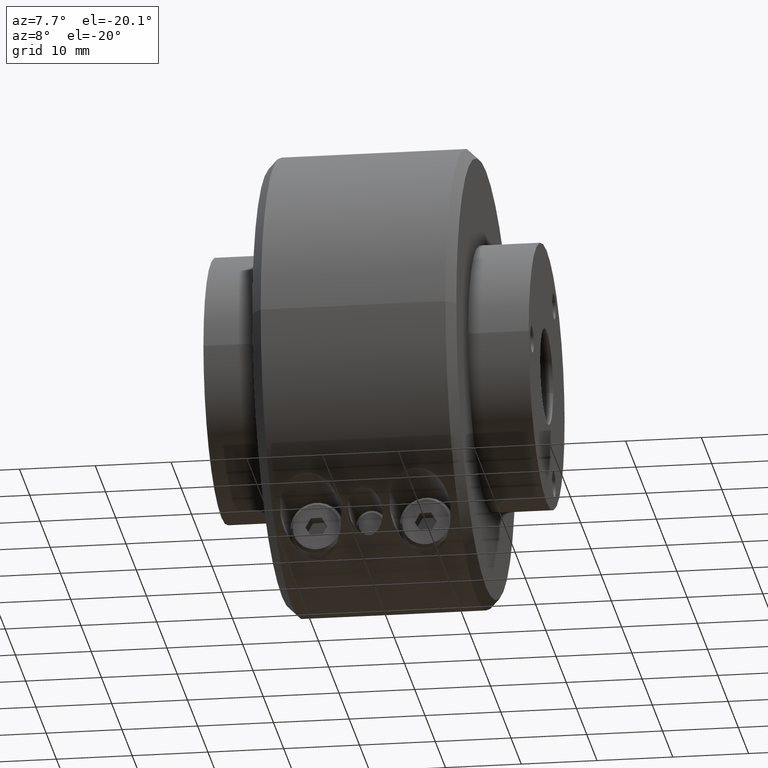
[diagram: clean part render]
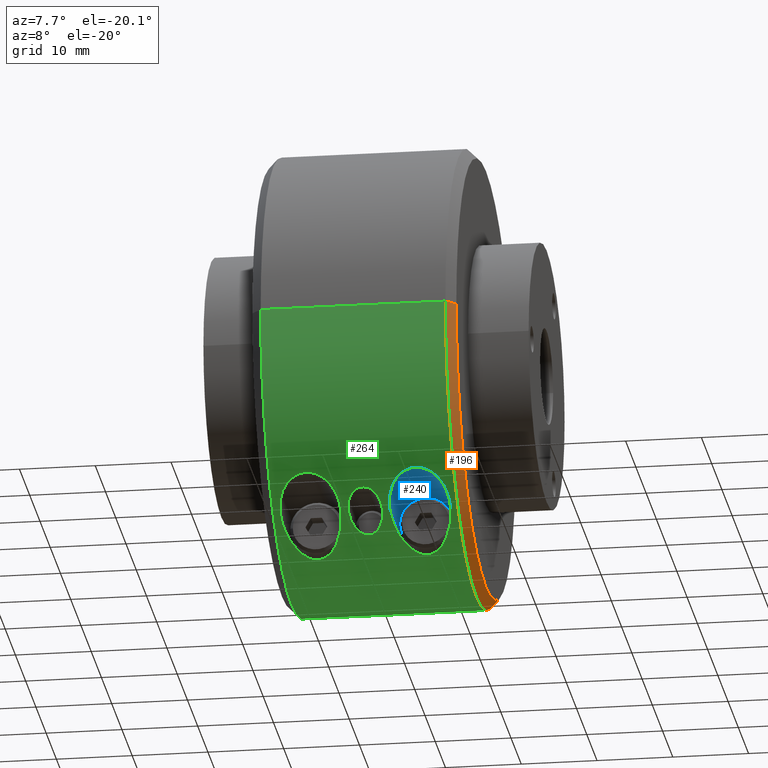
[diagram: same view with three faces highlighted in distinct colors, each labeled with its STEP entity id]
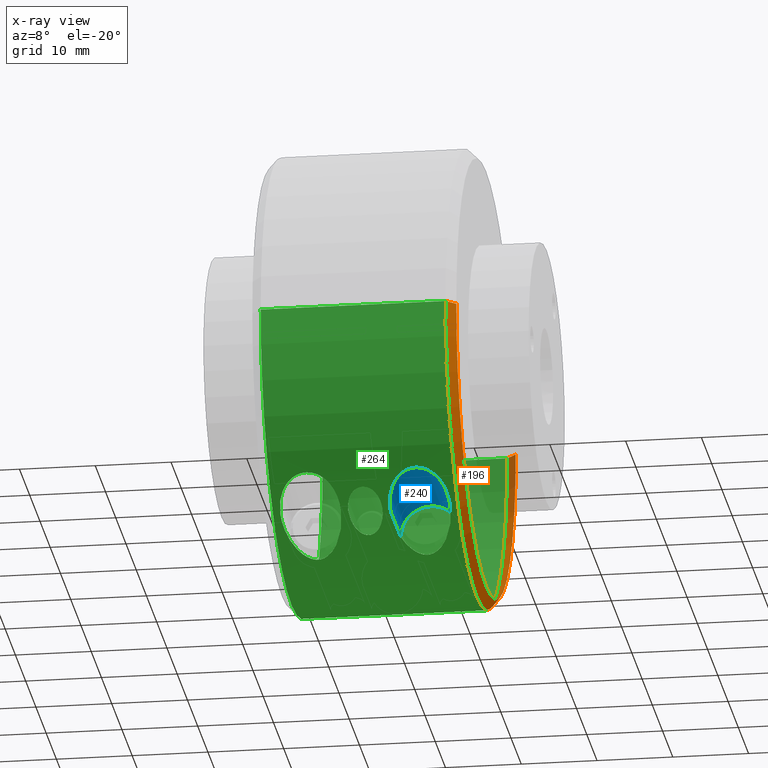
[diagram: x-ray of the same camera — body ghosted, the three highlighted faces saturated]
A machine part, auxiliary view with three faces highlighted in distinct colors.
The next image is the same camera in x-ray (body ghosted, the three faces saturated) — at least one of them is partly hidden behind the body in this view.
Their STEP definitions:

[orange] entity #196 — the highlighted conical surface has half-angle 45 deg.
#107 = ORIENTED_EDGE ( 'NONE', *, *, #1799, .F. ) ;
#108 = ORIENTED_EDGE ( 'NONE', *, *, #1729, .F. ) ;
#112 = ORIENTED_EDGE ( 'NONE', *, *, #1810, .F. ) ;
#139 = ORIENTED_EDGE ( 'NONE', *, *, #1731, .T. ) ;
#196 = ADVANCED_FACE ( 'NONE', ( #2001 ), #2010, .T. ) ;
#645 = CARTESIAN_POINT ( 'NONE',  ( 0.4800000000000003700, 1.622657008870243500E-016, 0.0000000000000000000 ) ) ;
#646 = DIRECTION ( 'NONE',  ( -1.000000000000000000, -1.224646799147357600E-016, -0.0000000000000000000 ) ) ;
#650 = DIRECTION ( 'NONE',  ( 1.147835291455572900E-016, -1.000000000000000000, 0.0000000000000000000 ) ) ;
#818 = CARTESIAN_POINT ( 'NONE',  ( 0.5300000000000002500, 1.683889348827611000E-016, 0.0000000000000000000 ) ) ;
#860 = VERTEX_POINT ( 'NONE', #1567 ) ;
#897 = VERTEX_POINT ( 'NONE', #1590 ) ;
#905 = VERTEX_POINT ( 'NONE', #1594 ) ;
#909 = VERTEX_POINT ( 'NONE', #1597 ) ;
#1035 = DIRECTION ( 'NONE',  ( 1.198178944589589100E-016, -1.000000000000000000, 0.0000000000000000000 ) ) ;
#1066 = DIRECTION ( 'NONE',  ( 1.000000000000000000, 1.224646799147353200E-016, 0.0000000000000000000 ) ) ;
#1567 = CARTESIAN_POINT ( 'NONE',  ( 0.5300000000000001400, 1.140000000000000300, 1.426713521006666400E-016 ) ) ;
#1590 = CARTESIAN_POINT ( 'NONE',  ( 0.4800000000000004800, -1.189999999999999900, 0.0000000000000000000 ) ) ;
#1594 = CARTESIAN_POINT ( 'NONE',  ( 0.5300000000000003600, -1.139999999999999900, 0.0000000000000000000 ) ) ;
#1597 = CARTESIAN_POINT ( 'NONE',  ( 0.4800000000000002000, 1.190000000000000200, 1.457329690985350300E-016 ) ) ;
#1729 = EDGE_CURVE ( 'NONE', #860, #909, #2538, .T. ) ;
#1731 = EDGE_CURVE ( 'NONE', #905, #897, #2548, .T. ) ;
#1799 = EDGE_CURVE ( 'NONE', #909, #897, #2631, .T. ) ;
#1810 = EDGE_CURVE ( 'NONE', #905, #860, #2636, .T. ) ;
#1851 = AXIS2_PLACEMENT_3D ( 'NONE', #645, #646, #650 ) ;
#2001 = FACE_OUTER_BOUND ( 'NONE', #2876, .T. ) ;
#2010 = CONICAL_SURFACE ( 'NONE', #1851, 1.189999999999999900, 0.7853981633974482800 ) ;
#2401 = AXIS2_PLACEMENT_3D ( 'NONE', #2815, #2825, #2855 ) ;
#2406 = AXIS2_PLACEMENT_3D ( 'NONE', #818, #1066, #1035 ) ;
#2538 = LINE ( 'NONE', #3114, #2544 ) ;
#2544 = VECTOR ( 'NONE', #3110, 39.37007874015748900 ) ;
#2545 = VECTOR ( 'NONE', #3102, 39.37007874015748900 ) ;
#2548 = LINE ( 'NONE', #3111, #2545 ) ;
#2631 = CIRCLE ( 'NONE', #2401, 1.189999999999999900 ) ;
#2636 = CIRCLE ( 'NONE', #2406, 1.140000000000000100 ) ;
#2815 = CARTESIAN_POINT ( 'NONE',  ( 0.4800000000000003700, 1.622657008870243500E-016, 0.0000000000000000000 ) ) ;
#2825 = DIRECTION ( 'NONE',  ( -1.000000000000000000, -1.224646799147357600E-016, -0.0000000000000000000 ) ) ;
#2855 = DIRECTION ( 'NONE',  ( 1.147835291455572900E-016, -1.000000000000000000, 0.0000000000000000000 ) ) ;
#2876 = EDGE_LOOP ( 'NONE', ( #108, #112, #139, #107 ) ) ;
#3102 = DIRECTION ( 'NONE',  ( -0.7071067811865473500, -0.7071067811865475700, 0.0000000000000000000 ) ) ;
#3110 = DIRECTION ( 'NONE',  ( -0.7071067811865475700, 0.7071067811865473500, 8.659560562354932900E-017 ) ) ;
#3111 = CARTESIAN_POINT ( 'NONE',  ( 0.4800000000000004800, -1.189999999999999900, 0.0000000000000000000 ) ) ;
#3114 = CARTESIAN_POINT ( 'NONE',  ( 0.4800000000000002000, 1.190000000000000200, 1.457329690985350300E-016 ) ) ;

[blue] entity #240 — the highlighted cylindrical surface (edge-blend (fillet) strip) has radius 4 mm, axis along (0, 1, 0).
#240 = ADVANCED_FACE ( 'NONE', ( #2082 ), #2089, .F. ) ;
#490 = CARTESIAN_POINT ( 'NONE',  ( 0.2842913385826774100, 1.190000000000000200, -0.9499999999999999600 ) ) ;
#491 = DIRECTION ( 'NONE',  ( 1.291314702887519600E-016, 1.000000000000000000, 0.0000000000000000000 ) ) ;
#495 = DIRECTION ( 'NONE',  ( 1.000000000000000000, 0.0000000000000000000, 0.0000000000000000000 ) ) ;
#691 = VERTEX_POINT ( 'NONE', #1448 ) ;
#717 = VERTEX_POINT ( 'NONE', #1470 ) ;
#752 = VERTEX_POINT ( 'NONE', #1504 ) ;
#778 = VERTEX_POINT ( 'NONE', #1519 ) ;
#1448 = CARTESIAN_POINT ( 'NONE',  ( 0.1268110236220473300, -0.7166589146867566900, -0.9500000000000000700 ) ) ;
#1470 = CARTESIAN_POINT ( 'NONE',  ( 0.1268110236220473800, -0.2999999999999997700, -0.9499999999999999600 ) ) ;
#1504 = CARTESIAN_POINT ( 'NONE',  ( 0.4417716535433070500, -0.2999999999999998200, -0.9499999999999999600 ) ) ;
#1519 = CARTESIAN_POINT ( 'NONE',  ( 0.4417716535433070500, -0.7166589146867565800, -0.9499999999999999600 ) ) ;
#1697 = EDGE_CURVE ( 'NONE', #752, #717, #2505, .T. ) ;
#1705 = EDGE_CURVE ( 'NONE', #691, #717, #2513, .T. ) ;
#1706 = EDGE_CURVE ( 'NONE', #691, #778, #2996, .T. ) ;
#1707 = EDGE_CURVE ( 'NONE', #778, #752, #2516, .T. ) ;
#1891 = AXIS2_PLACEMENT_3D ( 'NONE', #490, #491, #495 ) ;
#2082 = FACE_OUTER_BOUND ( 'NONE', #3756, .T. ) ;
#2089 = CYLINDRICAL_SURFACE ( 'NONE', #1891, 0.1574803149606298900 ) ;
#2365 = AXIS2_PLACEMENT_3D ( 'NONE', #3037, #3445, #3444 ) ;
#2505 = CIRCLE ( 'NONE', #2365, 0.1574803149606298400 ) ;
#2508 = VECTOR ( 'NONE', #3361, 39.37007874015748100 ) ;
#2509 = VECTOR ( 'NONE', #3319, 39.37007874015748100 ) ;
#2513 = LINE ( 'NONE', #3370, #2508 ) ;
#2516 = LINE ( 'NONE', #3321, #2509 ) ;
#2996 = B_SPLINE_CURVE_WITH_KNOTS ( 'NONE', 3,
 ( #3362, #3360, #3359, #3358, #3357, #3356, #3355, #3353, #3352, #3351, #3350, #3349, #3347, #3346, #3345, #3344, #3343, #3342, #3341, #3340, #3339, #3338, #3337, #3336, #3335, #3334, #3333, #3330, #3329, #3328, #3327, #3325, #3323, #3322 ),
 .UNSPECIFIED., .F., .F.,
 ( 4, 2, 2, 2, 2, 2, 2, 2, 2, 2, 2, 2, 2, 2, 2, 2, 4 ),
 ( 0.01933870237635595600, 0.02129765736795384900, 0.02227713486375279200, 0.02325661235955173900, 0.02423608985535068800, 0.02521556735114963500, 0.02570530609904911000, 0.02619504484694858800, 0.02717452234274754500, 0.02815399983854649900, 0.02913347733434545500, 0.03011295483014441200, 0.03109243232594336600, 0.03207190982174232300, 0.03305138731754128000, 0.03403086481334023600, 0.03501034230913919300 ),
 .UNSPECIFIED. ) ;
#3037 = CARTESIAN_POINT ( 'NONE',  ( 0.2842913385826771900, -0.2999999999999998200, -0.9499999999999999600 ) ) ;
#3319 = DIRECTION ( 'NONE',  ( 1.291314702887519600E-016, 1.000000000000000000, 0.0000000000000000000 ) ) ;
#3321 = CARTESIAN_POINT ( 'NONE',  ( 0.4417716535433073300, 1.190000000000000200, -0.9499999999999999600 ) ) ;
#3322 = CARTESIAN_POINT ( 'NONE',  ( 0.4417716535433070500, -0.7166589146867565800, -0.9499999999999999600 ) ) ;
#3323 = CARTESIAN_POINT ( 'NONE',  ( 0.4417716535433071100, -0.7270636393038401000, -0.9421509066824274000 ) ) ;
#3325 = CARTESIAN_POINT ( 'NONE',  ( 0.4411831424770676900, -0.7373438079873646500, -0.9341252740445069600 ) ) ;
#3327 = CARTESIAN_POINT ( 'NONE',  ( 0.4386920244695161600, -0.7573912267705335000, -0.9179457763926255300 ) ) ;
#3328 = CARTESIAN_POINT ( 'NONE',  ( 0.4367927067749547400, -0.7671858173489850600, -0.9097720008696322800 ) ) ;
#3329 = CARTESIAN_POINT ( 'NONE',  ( 0.4314657046352929900, -0.7863019394727730500, -0.8933019824723997800 ) ) ;
#3330 = CARTESIAN_POINT ( 'NONE',  ( 0.4280417463868017600, -0.7956238883994321000, -0.8850051682392982000 ) ) ;
#3333 = CARTESIAN_POINT ( 'NONE',  ( 0.4192841107947197200, -0.8137606298970329100, -0.8683577355166971500 ) ) ;
#3334 = CARTESIAN_POINT ( 'NONE',  ( 0.4140343585880728600, -0.8223892809054210700, -0.8601766868193574400 ) ) ;
#3335 = CARTESIAN_POINT ( 'NONE',  ( 0.4015354192025671300, -0.8385989738493712100, -0.8443813255599887900 ) ) ;
#3336 = CARTESIAN_POINT ( 'NONE',  ( 0.3942135347604901500, -0.8462584540920759000, -0.8366872901319457600 ) ) ;
#3337 = CARTESIAN_POINT ( 'NONE',  ( 0.3772756378801638800, -0.8601301300160237900, -0.8224203013236399700 ) ) ;
#3338 = CARTESIAN_POINT ( 'NONE',  ( 0.3677871667720522500, -0.8662628017210619600, -0.8159330384586854800 ) ) ;
#3339 = CARTESIAN_POINT ( 'NONE',  ( 0.3463985045863789400, -0.8766319308490850800, -0.8047822206720584000 ) ) ;
#3340 = CARTESIAN_POINT ( 'NONE',  ( 0.3348861747334849800, -0.8806883097385629400, -0.8003159741482190900 ) ) ;
#3341 = CARTESIAN_POINT ( 'NONE',  ( 0.3099528486442513200, -0.8863024469738151100, -0.7940941568071182600 ) ) ;
#3342 = CARTESIAN_POINT ( 'NONE',  ( 0.2971568196016276000, -0.8877197893086474800, -0.7924983132518724800 ) ) ;
#3343 = CARTESIAN_POINT ( 'NONE',  ( 0.2709078680528131400, -0.8876812484891406500, -0.7925414827742549600 ) ) ;
#3344 = CARTESIAN_POINT ( 'NONE',  ( 0.2580968311318856400, -0.8862112524690060100, -0.7941958695688963200 ) ) ;
#3345 = CARTESIAN_POINT ( 'NONE',  ( 0.2396397806536113800, -0.8820114632690317900, -0.7988492626727306000 ) ) ;
#3346 = CARTESIAN_POINT ( 'NONE',  ( 0.2335599199582721100, -0.8802554665329315200, -0.8007867072916050600 ) ) ;
#3347 = CARTESIAN_POINT ( 'NONE',  ( 0.2220166161479451000, -0.8761984009292055300, -0.8052238192857579200 ) ) ;
#3349 = CARTESIAN_POINT ( 'NONE',  ( 0.2165046503257963800, -0.8738906790997078600, -0.8077309692476125600 ) ) ;
#3350 = CARTESIAN_POINT ( 'NONE',  ( 0.2006785491179572400, -0.8661808654099441000, -0.8160193987852417700 ) ) ;
#3351 = CARTESIAN_POINT ( 'NONE',  ( 0.1910415326421992200, -0.8599349523635950700, -0.8226234499782163500 ) ) ;
#3352 = CARTESIAN_POINT ( 'NONE',  ( 0.1742869972778605900, -0.8461684479167898000, -0.8367774020017109100 ) ) ;
#3353 = CARTESIAN_POINT ( 'NONE',  ( 0.1669898761052813200, -0.8385456074413001300, -0.8444359254926230300 ) ) ;
#3355 = CARTESIAN_POINT ( 'NONE',  ( 0.1543902918150238700, -0.8221629242766875800, -0.8603946152588866100 ) ) ;
#3356 = CARTESIAN_POINT ( 'NONE',  ( 0.1491946329998531400, -0.8135617559360758300, -0.8685421625647346000 ) ) ;
#3357 = CARTESIAN_POINT ( 'NONE',  ( 0.1405478966375794900, -0.7956217617350146400, -0.8850052153112367700 ) ) ;
#3358 = CARTESIAN_POINT ( 'NONE',  ( 0.1370940065930605900, -0.7862514345083495600, -0.8933483165579945200 ) ) ;
#3359 = CARTESIAN_POINT ( 'NONE',  ( 0.1290452936858940700, -0.7572718759153918000, -0.9183079210163349600 ) ) ;
#3360 = CARTESIAN_POINT ( 'NONE',  ( 0.1268110236220473000, -0.7372855888875287100, -0.9344396947933443200 ) ) ;
#3361 = DIRECTION ( 'NONE',  ( 1.291314702887519600E-016, 1.000000000000000000, 0.0000000000000000000 ) ) ;
#3362 = CARTESIAN_POINT ( 'NONE',  ( 0.1268110236220473300, -0.7166589146867566900, -0.9500000000000000700 ) ) ;
#3370 = CARTESIAN_POINT ( 'NONE',  ( 0.1268110236220475500, 1.190000000000000200, -0.9499999999999999600 ) ) ;
#3444 = DIRECTION ( 'NONE',  ( 1.000000000000000000, -2.168404344971010100E-016, 0.0000000000000000000 ) ) ;
#3445 = DIRECTION ( 'NONE',  ( -1.291314702887519600E-016, -1.000000000000000000, -0.0000000000000000000 ) ) ;
#3501 = ORIENTED_EDGE ( 'NONE', *, *, #1707, .F. ) ;
#3502 = ORIENTED_EDGE ( 'NONE', *, *, #1697, .F. ) ;
#3503 = ORIENTED_EDGE ( 'NONE', *, *, #1705, .T. ) ;
#3504 = ORIENTED_EDGE ( 'NONE', *, *, #1706, .F. ) ;
#3756 = EDGE_LOOP ( 'NONE', ( #3504, #3503, #3502, #3501 ) ) ;

[green] entity #264 — the highlighted cylindrical surface (partial cylindrical patch) has radius 30.226 mm, axis along (-1, -0, -0).
#264 = ADVANCED_FACE ( 'NONE', ( #2128, #2136, #2138, #2140, #2130, #2132, #2137 ), #2134, .T. ) ;
#691 = VERTEX_POINT ( 'NONE', #1448 ) ;
#725 = VERTEX_POINT ( 'NONE', #1478 ) ;
#742 = VERTEX_POINT ( 'NONE', #1495 ) ;
#758 = CARTESIAN_POINT ( 'NONE',  ( 0.1172440806198900300, 0.8385989738493715400, -0.8443813255599889000 ) ) ;
#762 = CARTESIAN_POINT ( 'NONE',  ( -0.02619450745079180200, 0.8862112524690061200, -0.7941958695688962100 ) ) ;
#764 = CARTESIAN_POINT ( 'NONE',  ( 0.3788017185959316500, -0.5077497359509141100, -1.076332343259861500 ) ) ;
#765 = VERTEX_POINT ( 'NONE', #1512 ) ;
#767 = CARTESIAN_POINT ( 'NONE',  ( 0.1977256990415923500, -0.4955350174084007800, -1.081995454610696000 ) ) ;
#769 = CARTESIAN_POINT ( 'NONE',  ( 0.1333557593145851800, -0.6517143620269182400, -0.9957959574968229300 ) ) ;
#775 = CARTESIAN_POINT ( 'NONE',  ( -0.2399102287067589900, -0.8820840337501997300, -0.7987691000783553300 ) ) ;
#778 = VERTEX_POINT ( 'NONE', #1519 ) ;
#779 = CARTESIAN_POINT ( 'NONE',  ( -0.1173014624773959100, 0.8385456074413009100, -0.8444359254926231400 ) ) ;
#784 = CARTESIAN_POINT ( 'NONE',  ( -0.1552460448967831200, 0.7572718759153920200, -0.9183079210163347400 ) ) ;
#786 = VERTEX_POINT ( 'NONE', #1524 ) ;
#788 = CARTESIAN_POINT ( 'NONE',  ( -0.3463501770909755400, 0.7938905809639805700, -0.8864945579650521700 ) ) ;
#790 = CARTESIAN_POINT ( 'NONE',  ( -0.2585479745910006500, -0.8859272401988099700, -0.7945024014544441700 ) ) ;
#792 = CARTESIAN_POINT ( 'NONE',  ( 0.1568918038943905900, 0.7373438079873652100, -0.9341252740445070700 ) ) ;
#796 = VERTEX_POINT ( 'NONE', #1530 ) ;
#798 = CARTESIAN_POINT ( 'NONE',  ( -0.1268110236220473300, -0.7166589146867565800, -0.9499999999999999600 ) ) ;
#800 = VERTEX_POINT ( 'NONE', #1533 ) ;
#801 = CARTESIAN_POINT ( 'NONE',  ( -0.2214732324927775100, 0.7939145050080961300, -0.8865537986119889100 ) ) ;
#807 = CARTESIAN_POINT ( 'NONE',  ( -0.3352625617353607300, -0.8805642650089150500, -0.8004525592636360100 ) ) ;
#809 = CARTESIAN_POINT ( 'NONE',  ( 0.3005682243607854500, 0.5834219894124560400, -1.037169273515432800 ) ) ;
#813 = CARTESIAN_POINT ( 'NONE',  ( -0.2222175238064715000, -0.8762790424376637500, -0.8051360757614476300 ) ) ;
#817 = CARTESIAN_POINT ( 'NONE',  ( -0.2306352949164073000, 0.8030427143472939100, -0.8782422623365748700 ) ) ;
#819 = VERTEX_POINT ( 'NONE', #1543 ) ;
#826 = VERTEX_POINT ( 'NONE', #1548 ) ;
#829 = CARTESIAN_POINT ( 'NONE',  ( 0.2462080930810691400, -0.4467944029703376200, -1.102950205153904600 ) ) ;
#831 = CARTESIAN_POINT ( 'NONE',  ( -0.1398007622691838600, -0.7959883237808135200, -0.8849613190451398600 ) ) ;
#834 = CARTESIAN_POINT ( 'NONE',  ( 0.2334739155469829600, -0.4559342387610135800, -1.099203513231319400 ) ) ;
#841 = CARTESIAN_POINT ( 'NONE',  ( 0.2531171482034737000, -0.4428148489455584500, -1.104547154865940900 ) ) ;
#847 = CARTESIAN_POINT ( 'NONE',  ( -0.06778668825688088900, 0.8738906790997081900, -0.8077309692476123400 ) ) ;
#851 = CARTESIAN_POINT ( 'NONE',  ( 0.1268110236220473500, -0.7039323233697768500, -0.9596006580219883500 ) ) ;
#857 = CARTESIAN_POINT ( 'NONE',  ( 0.2642735244809211700, -0.4385400319036995600, -1.106248160387253400 ) ) ;
#859 = CARTESIAN_POINT ( 'NONE',  ( -0.1480964138665170100, -0.8139889443540800900, -0.8683582393996418500 ) ) ;
#861 = CARTESIAN_POINT ( 'NONE',  ( -0.1290330021471739800, -0.7572364514461766800, -0.9183392098798269800 ) ) ;
#863 = CARTESIAN_POINT ( 'NONE',  ( 0.1309727676085574200, -0.6647894678542929400, -0.9871205778797004200 ) ) ;
#864 = VERTEX_POINT ( 'NONE', #1569 ) ;
#865 = CARTESIAN_POINT ( 'NONE',  ( 0.2681851456840719200, -0.4373859482501108500, -1.106704216717876400 ) ) ;
#868 = CARTESIAN_POINT ( 'NONE',  ( 0.2037853979277083100, 0.6631569351938276800, -0.9882238491957051600 ) ) ;
#870 = CARTESIAN_POINT ( 'NONE',  ( 0.1276955133269961600, -0.6908881294968949300, -0.9690333659703512800 ) ) ;
#874 = CARTESIAN_POINT ( 'NONE',  ( 0.1525013681922775800, 0.7671858173489850600, -0.9097720008696321700 ) ) ;
#875 = VERTEX_POINT ( 'NONE', #1575 ) ;
#880 = CARTESIAN_POINT ( 'NONE',  ( 0.05059483615080780100, 0.8806883097385632700, -0.8003159741482189800 ) ) ;
#885 = CARTESIAN_POINT ( 'NONE',  ( 0.3465032081252326100, 0.6239689270277335400, -1.013318572941419600 ) ) ;
#889 = CARTESIAN_POINT ( 'NONE',  ( 0.2921710881814197900, -0.4357933803047826000, -1.107332279061117800 ) ) ;
#891 = CARTESIAN_POINT ( 'NONE',  ( 0.3000196237846790600, -0.4372894521367502500, -1.106742328465889500 ) ) ;
#893 = CARTESIAN_POINT ( 'NONE',  ( -0.3370410279042148100, 0.8026475206926460000, -0.8785737381523119900 ) ) ;
#895 = CARTESIAN_POINT ( 'NONE',  ( 0.2880773314595153100, -0.4354013375186460700, -1.107486196555649700 ) ) ;
#897 = VERTEX_POINT ( 'NONE', #1590 ) ;
#898 = CARTESIAN_POINT ( 'NONE',  ( 0.1437504078041246500, 0.7956238883994323200, -0.8850051682392983100 ) ) ;
#908 = VERTEX_POINT ( 'NONE', #1596 ) ;
#909 = VERTEX_POINT ( 'NONE', #1597 ) ;
#910 = CARTESIAN_POINT ( 'NONE',  ( -0.2780419474800761600, -0.8877096387816562100, -0.7925096828436651900 ) ) ;
#916 = CARTESIAN_POINT ( 'NONE',  ( 0.3406228865930957500, -0.4607973308510158200, -1.097178458918371300 ) ) ;
#923 = CARTESIAN_POINT ( 'NONE',  ( -0.3669846486469135500, 0.7574098553733839000, -0.9178692324066543000 ) ) ;
#925 = CARTESIAN_POINT ( 'NONE',  ( 0.08722783681773459100, -0.7403104498244955600, -0.9318000954252783100 ) ) ;
#926 = CARTESIAN_POINT ( 'NONE',  ( -0.2484419631027417800, 0.8132979852625449300, -0.8687163836793775400 ) ) ;
#927 = CARTESIAN_POINT ( 'NONE',  ( 0.2674660799497574600, 0.5832059848818882400, -1.037298512768634300 ) ) ;
#929 = CARTESIAN_POINT ( 'NONE',  ( -0.3103059264801896800, -0.8858854659164884200, -0.7945489955060328600 ) ) ;
#934 = CARTESIAN_POINT ( 'NONE',  ( 0.3712027762278751200, 0.6898944623762571800, -0.9697488315784467100 ) ) ;
#937 = CARTESIAN_POINT ( 'NONE',  ( -0.3941566583561607100, -0.8458580619296632900, -0.8370502846530835100 ) ) ;
#938 = CARTESIAN_POINT ( 'NONE',  ( 0.1750436488477035700, -0.5334532639391461600, -1.063827135346236100 ) ) ;
#942 = CARTESIAN_POINT ( 'NONE',  ( 0.01286548101895041400, 0.8877197893086477000, -0.7924983132518724800 ) ) ;
#946 = VERTEX_POINT ( 'NONE', #1606 ) ;
#947 = CARTESIAN_POINT ( 'NONE',  ( 0.2276942743820946400, -0.4610408002426255600, -1.097076244500680300 ) ) ;
#949 = CARTESIAN_POINT ( 'NONE',  ( 0.1349927722120425600, 0.8137606298970330200, -0.8683577355166968200 ) ) ;
#950 = CARTESIAN_POINT ( 'NONE',  ( 0.2925152866732544400, 0.5814184487484009800, -1.038293747987302900 ) ) ;
#956 = CARTESIAN_POINT ( 'NONE',  ( 0.3149720611173691400, -0.4425696833219762100, -1.104645227750243000 ) ) ;
#957 = CARTESIAN_POINT ( 'NONE',  ( -0.3715174751430969600, 0.7403808712577308900, -0.9317460129980084100 ) ) ;
#959 = CARTESIAN_POINT ( 'NONE',  ( -0.1911227716038176600, -0.8599927700300324900, -0.8225630403084107600 ) ) ;
#960 = CARTESIAN_POINT ( 'NONE',  ( 0.2354905303808025000, 0.6059298726017862100, -1.024200546692015900 ) ) ;
#962 = CARTESIAN_POINT ( 'NONE',  ( 0.09298429929748651400, 0.8601301300160242300, -0.8224203013236399700 ) ) ;
#965 = CARTESIAN_POINT ( 'NONE',  ( 0.1544006858868390000, 0.7573912267705339400, -0.9179457763926255300 ) ) ;
#968 = CARTESIAN_POINT ( 'NONE',  ( -0.4315763893011813100, -0.7859670634556956700, -0.8935960154992680400 ) ) ;
#969 = CARTESIAN_POINT ( 'NONE',  ( -0.1574803149606298900, 0.7166589146867570200, -0.9500000000000000700 ) ) ;
#971 = CARTESIAN_POINT ( 'NONE',  ( 0.3219631972384652300, -0.4465413093701007800, -1.103052552920602100 ) ) ;
#972 = CARTESIAN_POINT ( 'NONE',  ( 0.1685523155363733400, -0.5465305214839875100, -1.057178914281827300 ) ) ;
#974 = CARTESIAN_POINT ( 'NONE',  ( 0.2183044910444137400, 0.6304017859974004900, -1.009332877291436300 ) ) ;
#977 = CARTESIAN_POINT ( 'NONE',  ( 0.3044878198131574200, 0.5849099867432582300, -1.036332261569832900 ) ) ;
#978 = CARTESIAN_POINT ( 'NONE',  ( -0.007428584537347502700, -0.8207675109247357700, -0.8616502525752487400 ) ) ;
#980 = CARTESIAN_POINT ( 'NONE',  ( 0.3218255903342995300, 0.5951663568929186400, -1.030492684954527100 ) ) ;
#984 = CARTESIAN_POINT ( 'NONE',  ( 0.2800309134235677300, -0.4354321659806245600, -1.107474076041397900 ) ) ;
#986 = CARTESIAN_POINT ( 'NONE',  ( 0.2306063947179649000, 0.6118365394557611100, -1.020689567582447400 ) ) ;
#990 = CARTESIAN_POINT ( 'NONE',  ( -0.3572947515578923100, 0.7791084237013192700, -0.8995187799104214000 ) ) ;
#991 = CARTESIAN_POINT ( 'NONE',  ( 0.1425077245661435500, -0.6123999459311730800, -1.020799246071509800 ) ) ;
#992 = CARTESIAN_POINT ( 'NONE',  ( -0.1100043413048166400, 0.8461684479167898000, -0.8367774020017109100 ) ) ;
#995 = CARTESIAN_POINT ( 'NONE',  ( 0.2438053712057834900, 0.5979716118021748400, -1.028853436631073100 ) ) ;
#999 = CARTESIAN_POINT ( 'NONE',  ( 0.2118308473100467000, -0.4777120488454867900, -1.089923610950274600 ) ) ;
#1000 = CARTESIAN_POINT ( 'NONE',  ( -0.2974876104023155800, -0.8873253366404867400, -0.7929406736557074200 ) ) ;
#1002 = CARTESIAN_POINT ( 'NONE',  ( 0.3038301923686351800, -0.4383873803955805100, -1.106308616822935500 ) ) ;
#1015 = CARTESIAN_POINT ( 'NONE',  ( -0.2034497701349523800, 0.7627721783843011100, -0.9134161736350523400 ) ) ;
#1019 = CARTESIAN_POINT ( 'NONE',  ( 0.2168801894963381900, -0.4719113239847284000, -1.092444327199815700 ) ) ;
#1023 = CARTESIAN_POINT ( 'NONE',  ( -0.2916490231105883200, 0.8210325808112631800, -0.8613974124094638800 ) ) ;
#1025 = CARTESIAN_POINT ( 'NONE',  ( 0.3728740157480316400, 0.7033249876171430200, -0.9600588186339179500 ) ) ;
#1028 = CARTESIAN_POINT ( 'NONE',  ( -0.3167276580320938000, -0.8847955006238845700, -0.7957646342897679600 ) ) ;
#1030 = CARTESIAN_POINT ( 'NONE',  ( 0.07312616204064384400, -0.7789044669291121900, -0.8996955878754988600 ) ) ;
#1033 = CARTESIAN_POINT ( 'NONE',  ( -0.2082660009132416000, 0.7736269557936513700, -0.9042410274062329100 ) ) ;
#1037 = CARTESIAN_POINT ( 'NONE',  ( 0.2760536558165075900, -0.4358393339452262300, -1.107314212865507800 ) ) ;
#1044 = CARTESIAN_POINT ( 'NONE',  ( 0.1957086614173231300, 0.7034526181308973200, -0.9599625370071092100 ) ) ;
#1047 = CARTESIAN_POINT ( 'NONE',  ( 0.2220259349721978300, 0.6240599576745171600, -1.013262213650605300 ) ) ;
#1051 = CARTESIAN_POINT ( 'NONE',  ( 0.3564569826826575700, -0.4773645925130738400, -1.090075673163011900 ) ) ;
#1056 = CARTESIAN_POINT ( 'NONE',  ( -0.3650333552136074700, 0.7630361980500548500, -0.9131956327638819400 ) ) ;
#1061 = CARTESIAN_POINT ( 'NONE',  ( 0.2084519541503087900, 0.6499112728410654200, -0.9969716211179688900 ) ) ;
#1062 = CARTESIAN_POINT ( 'NONE',  ( -0.01484484260253935400, -0.8197797274787610400, -0.8625900898847750400 ) ) ;
#1065 = CARTESIAN_POINT ( 'NONE',  ( 0.07604186905447302100, -0.7735948418091359600, -0.9042685137710097000 ) ) ;
#1068 = CARTESIAN_POINT ( 'NONE',  ( 0.3154012757917036800, 0.5902900658046687000, -1.033283423878505600 ) ) ;
#1070 = CARTESIAN_POINT ( 'NONE',  ( 0.1973918853415209700, 0.6898655578736155900, -0.9697675024842661300 ) ) ;
#1071 = CARTESIAN_POINT ( 'NONE',  ( -0.3601822028564303800, 0.7738884144149398300, -0.9040172704478817200 ) ) ;
#1074 = CARTESIAN_POINT ( 'NONE',  ( -0.08858267716535425700, -0.7285516749935495600, -0.9410283655851626700 ) ) ;
#1076 = CARTESIAN_POINT ( 'NONE',  ( -0.08858267716535424300, -0.7166589146867565800, -0.9499999999999999600 ) ) ;
#1078 = CARTESIAN_POINT ( 'NONE',  ( -0.3318186955618363500, 0.8065967376505444000, -0.8749419406668604800 ) ) ;
#1079 = CARTESIAN_POINT ( 'NONE',  ( -0.06227472243473221300, 0.8761984009292055300, -0.8052238192857583700 ) ) ;
#1085 = CARTESIAN_POINT ( 'NONE',  ( -0.2015101049350954400, 0.7571320822168725600, -0.9180982998531531700 ) ) ;
#1088 = CARTESIAN_POINT ( 'NONE',  ( 0.1471743660526159400, 0.7863019394727734900, -0.8933019824723996700 ) ) ;
#1089 = CARTESIAN_POINT ( 'NONE',  ( -0.1437434419450978300, 0.7956217617350147500, -0.8850052153112365500 ) ) ;
#1091 = CARTESIAN_POINT ( 'NONE',  ( -0.02906516340208299300, -0.8161765846607461600, -0.8660038851799578600 ) ) ;
#1097 = CARTESIAN_POINT ( 'NONE',  ( -0.4281826833774310400, -0.7952726664125167000, -0.8853207090392559700 ) ) ;
#1101 = CARTESIAN_POINT ( 'NONE',  ( -0.01846309099721019800, -0.8190476124577320500, -0.8632860158435928800 ) ) ;
#1103 = CARTESIAN_POINT ( 'NONE',  ( -0.06272358124329560600, -0.7940205217127958000, -0.8864587615506824800 ) ) ;
#1110 = CARTESIAN_POINT ( 'NONE',  ( -0.05353671196073242500, -0.8031456626649807800, -0.8781479403804753900 ) ) ;
#1114 = CARTESIAN_POINT ( 'NONE',  ( -0.03567393291616991600, -0.8133815751904818200, -0.8686380738280281600 ) ) ;
#1115 = CARTESIAN_POINT ( 'NONE',  ( -0.1970250447999489500, 0.7401210564413720500, -0.9319521094312379600 ) ) ;
#1116 = CARTESIAN_POINT ( 'NONE',  ( -0.4142326310336523200, -0.8220917715005934300, -0.8604616039797550200 ) ) ;
#1120 = CARTESIAN_POINT ( 'NONE',  ( -0.4394883990191586500, -0.7573845620901629200, -0.9182052494518008200 ) ) ;
#1121 = CARTESIAN_POINT ( 'NONE',  ( -0.3133333618138274800, 0.8161906373597039900, -0.8659906758812691000 ) ) ;
#1123 = CARTESIAN_POINT ( 'NONE',  ( -0.07653755394276554000, -0.7739620713649768600, -0.9040245776080781900 ) ) ;
#1127 = CARTESIAN_POINT ( 'NONE',  ( 0.08085471456548704000, -0.7627373736729576900, -0.9134452490838252900 ) ) ;
#1128 = CARTESIAN_POINT ( 'NONE',  ( -0.08726003304813251300, -0.7402147310937483600, -0.9318793985719046000 ) ) ;
#1130 = CARTESIAN_POINT ( 'NONE',  ( -0.1957086614173231300, 0.7285155208656244300, -0.9410556394568254700 ) ) ;
#1133 = CARTESIAN_POINT ( 'NONE',  ( -0.08119986737015129400, -0.7630589113626061700, -0.9132678464727845800 ) ) ;
#1134 = CARTESIAN_POINT ( 'NONE',  ( 0.1896344366369319100, -0.5079851171731302200, -1.076221017931218200 ) ) ;
#1137 = CARTESIAN_POINT ( 'NONE',  ( -0.003607687135643355100, -0.8210180476508063300, -0.8614112638640549800 ) ) ;
#1138 = CARTESIAN_POINT ( 'NONE',  ( 0.3705632365005999700, -0.4951159264472165800, -1.082186642407943600 ) ) ;
#1143 = CARTESIAN_POINT ( 'NONE',  ( 0.1574803149606298900, 0.7166589146867568000, -0.9499999999999999600 ) ) ;
#1144 = CARTESIAN_POINT ( 'NONE',  ( 0.1511914805980298100, -0.5860537340371528800, -1.036114130626430300 ) ) ;
#1146 = CARTESIAN_POINT ( 'NONE',  ( 0.003899334822868191500, -0.8210050814602063400, -0.8614236218590311000 ) ) ;
#1147 = CARTESIAN_POINT ( 'NONE',  ( 0.08858267716535424300, -0.7286666110092213700, -0.9409416604059520600 ) ) ;
#1149 = CARTESIAN_POINT ( 'NONE',  ( -0.3198824314893579700, 0.8134214245706565800, -0.8686007614409722000 ) ) ;
#1157 = CARTESIAN_POINT ( 'NONE',  ( -0.4194823127373522000, -0.8134072436653470000, -0.8686886828717104200 ) ) ;
#1158 = CARTESIAN_POINT ( 'NONE',  ( 0.06210716600370178700, 0.8766319308490857500, -0.8047822206720586200 ) ) ;
#1161 = CARTESIAN_POINT ( 'NONE',  ( 0.01501083646474533600, -0.8197493048127431100, -0.8626190084838902800 ) ) ;
#1163 = CARTESIAN_POINT ( 'NONE',  ( -0.4417716535433117700, -0.7166589146867558000, -0.9500000000000016200 ) ) ;
#1164 = CARTESIAN_POINT ( 'NONE',  ( 0.01870159367938593900, -0.8189933113001396400, -0.8633375467059949400 ) ) ;
#1165 = CARTESIAN_POINT ( 'NONE',  ( -0.2714384390375508800, -0.8873520470296579800, -0.7929107676626887500 ) ) ;
#1166 = DIRECTION ( 'NONE',  ( 1.000000000000000000, 1.224646799147353700E-016, 0.0000000000000000000 ) ) ;
#1167 = CARTESIAN_POINT ( 'NONE',  ( 0.007622795952926860600, -0.8207495616377651300, -0.8616673567045013400 ) ) ;
#1171 = CARTESIAN_POINT ( 'NONE',  ( -0.1574803149606299200, 0.7372855888875288200, -0.9344396947933445400 ) ) ;
#1173 = CARTESIAN_POINT ( 'NONE',  ( 0.03585682167311185500, -0.8132929397715738000, -0.8687210413091310800 ) ) ;
#1179 = CARTESIAN_POINT ( 'NONE',  ( 0.3728740157480315800, 0.7166589146867568000, -0.9499999999999998400 ) ) ;
#1182 = CARTESIAN_POINT ( 'NONE',  ( -0.2007682719874886200, -0.8662382718161436600, -0.8159586331534571800 ) ) ;
#1184 = CARTESIAN_POINT ( 'NONE',  ( -0.4417716535433071100, -0.7374460407513598900, -0.9343186534685100600 ) ) ;
#1187 = CARTESIAN_POINT ( 'NONE',  ( 0.3595321628489701600, 0.6497053946619560900, -0.9970186334416091300 ) ) ;
#1188 = CARTESIAN_POINT ( 'NONE',  ( 0.02566151006157397700, 0.8863024469738152200, -0.7940941568071182600 ) ) ;
#1189 = CARTESIAN_POINT ( 'NONE',  ( -0.3728740157480315800, 0.7166589146867565800, -0.9499999999999999600 ) ) ;
#1194 = CARTESIAN_POINT ( 'NONE',  ( -0.4800000000000001500, 4.469960816887839200E-017, 0.0000000000000000000 ) ) ;
#1197 = CARTESIAN_POINT ( 'NONE',  ( 0.3378503064164923900, 0.6116721561289167900, -1.020788384328886100 ) ) ;
#1198 = CARTESIAN_POINT ( 'NONE',  ( -0.2990781106608650900, 0.8200352776977837300, -0.8623509439654232200 ) ) ;
#1201 = CARTESIAN_POINT ( 'NONE',  ( -0.2111395768091800800, 0.7788624988798190700, -0.8997320032168378800 ) ) ;
#1208 = CARTESIAN_POINT ( 'NONE',  ( -0.3775478739931058000, -0.8599363101029841000, -0.8226227991444432500 ) ) ;
#1210 = CARTESIAN_POINT ( 'NONE',  ( -0.2691320213538531700, 0.8199656801290815500, -0.8624172119372587300 ) ) ;
#1213 = CARTESIAN_POINT ( 'NONE',  ( 0.3502124871176008900, 0.6302911943924435200, -1.009401309930932000 ) ) ;
#1218 = CARTESIAN_POINT ( 'NONE',  ( 0.02926840401294591000, -0.8160999514644325900, -0.8660761648068402400 ) ) ;
#1220 = CARTESIAN_POINT ( 'NONE',  ( 0.3567299888690075300, 0.6431583501482510700, -1.001251881822707600 ) ) ;
#1221 = CARTESIAN_POINT ( 'NONE',  ( -0.2338329540056553700, -0.8803409809526784300, -0.8006927113214454800 ) ) ;
#1222 = CARTESIAN_POINT ( 'NONE',  ( 0.06280065365513688700, -0.7939305204514316400, -0.8865391172840467700 ) ) ;
#1225 = CARTESIAN_POINT ( 'NONE',  ( -0.1670236308437887700, -0.8385846473062420500, -0.8443972984728480600 ) ) ;
#1228 = CARTESIAN_POINT ( 'NONE',  ( 0.3330118228118092400, 0.6058335738266361600, -1.024257705339054200 ) ) ;
#1233 = CARTESIAN_POINT ( 'NONE',  ( -0.1743428482425774500, -0.8462231986327505300, -0.8367220672846520400 ) ) ;
#1237 = CARTESIAN_POINT ( 'NONE',  ( 0.08275675775743901500, -0.7572028270932067400, -0.9180395545021636800 ) ) ;
#1238 = CARTESIAN_POINT ( 'NONE',  ( -0.3504039392481442200, 0.7890845799708012800, -0.8907802742237790300 ) ) ;
#1239 = CARTESIAN_POINT ( 'NONE',  ( 0.08858267716535424300, -0.7166589146867565800, -0.9499999999999998400 ) ) ;
#1240 = CARTESIAN_POINT ( 'NONE',  ( 0.05362041766531874100, -0.8030647449713376200, -0.8782218565750684600 ) ) ;
#1243 = CARTESIAN_POINT ( 'NONE',  ( 0.08349582818937512100, 0.8662628017210619600, -0.8159330384586850300 ) ) ;
#1245 = CARTESIAN_POINT ( 'NONE',  ( 0.3643489645174825500, 0.6629738299870080500, -0.9882453926201629800 ) ) ;
#1247 = CARTESIAN_POINT ( 'NONE',  ( 0.1099221961778128100, 0.8462584540920759000, -0.8366872901319452000 ) ) ;
#1248 = CARTESIAN_POINT ( 'NONE',  ( -0.3901830892306085200, -0.8495441164189069200, -0.8333063518505440200 ) ) ;
#1250 = CARTESIAN_POINT ( 'NONE',  ( -0.1471973319896165400, 0.7862514345083495600, -0.8933483165579942900 ) ) ;
#1253 = CARTESIAN_POINT ( 'NONE',  ( 0.2530999265757336600, 0.5908108009224969400, -1.032981018373536800 ) ) ;
#1255 = CARTESIAN_POINT ( 'NONE',  ( 0.2565468090755329000, 0.5886532263675067200, -1.034210682325244400 ) ) ;
#1256 = CARTESIAN_POINT ( 'NONE',  ( -0.1268110236220472700, -0.7372451210873445200, -0.9344702228036178000 ) ) ;
#1262 = CARTESIAN_POINT ( 'NONE',  ( -0.2522452985531481500, -0.8848682170833961400, -0.7956837036364767800 ) ) ;
#1263 = CARTESIAN_POINT ( 'NONE',  ( 0.2757218852580818900, 0.5809352181160433200, -1.038563562739292400 ) ) ;
#1264 = CARTESIAN_POINT ( 'NONE',  ( -0.3468405209769143100, -0.8764549521802151900, -0.8049751397724187500 ) ) ;
#1266 = CARTESIAN_POINT ( 'NONE',  ( -0.3728740157480315800, 0.7286887289012337100, -0.9409249751591257600 ) ) ;
#1271 = CARTESIAN_POINT ( 'NONE',  ( -0.2764617986722773300, 0.8209901408811233200, -0.8614378616216703500 ) ) ;
#1274 = CARTESIAN_POINT ( 'NONE',  ( -0.1957086614173231300, 0.7166589146867568000, -0.9499999999999999600 ) ) ;
#1275 = CARTESIAN_POINT ( 'NONE',  ( -0.05073141862440511100, 0.8802554665329318500, -0.8007867072916051700 ) ) ;
#1277 = CARTESIAN_POINT ( 'NONE',  ( 0.1268110236220473300, -0.7166589146867566900, -0.9500000000000000700 ) ) ;
#1279 = CARTESIAN_POINT ( 'NONE',  ( 0.3347293968036097500, -0.4556223118389141100, -1.099332699610625000 ) ) ;
#1280 = CARTESIAN_POINT ( 'NONE',  ( 0.1297430200053957000, 0.8223892809054218500, -0.8601766868193574400 ) ) ;
#1288 = CARTESIAN_POINT ( 'NONE',  ( 0.3663665396954665100, 0.6697231090162727400, -0.9836857977224614500 ) ) ;
#1289 = CARTESIAN_POINT ( 'NONE',  ( -0.1350967055828241600, 0.8135617559360761600, -0.8685421625647347100 ) ) ;
#1291 = CARTESIAN_POINT ( 'NONE',  ( 0.2467509284646332600, 0.5954589624731824200, -1.030308599797688000 ) ) ;
#1292 = CARTESIAN_POINT ( 'NONE',  ( -0.1299010467676533800, 0.8221629242766876900, -0.8603946152588867200 ) ) ;
#1294 = CARTESIAN_POINT ( 'NONE',  ( -0.4014878581854500200, -0.8382424185118325700, -0.8446766764725108800 ) ) ;
#1296 = CARTESIAN_POINT ( 'NONE',  ( 0.1574803149606298900, 0.7270636393038404400, -0.9421509066824277400 ) ) ;
#1297 = CARTESIAN_POINT ( 'NONE',  ( -0.09324980594047800600, 0.8599349523635957400, -0.8226234499782165700 ) ) ;
#1298 = DIRECTION ( 'NONE',  ( -1.147835291455572900E-016, 1.000000000000000000, 0.0000000000000000000 ) ) ;
#1300 = CARTESIAN_POINT ( 'NONE',  ( -0.08361278946472015800, 0.8661808654099442100, -0.8160193987852419900 ) ) ;
#1301 = CARTESIAN_POINT ( 'NONE',  ( -0.01338347052986420300, 0.8876812484891408700, -0.7925414827742546200 ) ) ;
#1302 = CARTESIAN_POINT ( 'NONE',  ( -0.4048653463639139700, -0.8342996594161166100, -0.8485731208748308300 ) ) ;
#1307 = CARTESIAN_POINT ( 'NONE',  ( 0.2882761885353132800, 0.5808845616463400600, -1.038591895989592300 ) ) ;
#1309 = CARTESIAN_POINT ( 'NONE',  ( -0.2910350507422878600, -0.8876914329740933600, -0.7925300751461898900 ) ) ;
#1310 = CARTESIAN_POINT ( 'NONE',  ( -0.2549512317688058000, 0.8160778717032755000, -0.8660970334503133000 ) ) ;
#1311 = CARTESIAN_POINT ( 'NONE',  ( -0.3681319839862554100, -0.8660569235211487100, -0.8161517408386331800 ) ) ;
#1312 = CARTESIAN_POINT ( 'NONE',  ( -0.04465155792906592300, 0.8820114632690321300, -0.7988492626727306000 ) ) ;
#1314 = CARTESIAN_POINT ( 'NONE',  ( -0.2166747486359036600, -0.8739665554624501700, -0.8076489141807036100 ) ) ;
#1318 = CARTESIAN_POINT ( 'NONE',  ( 0.3514595734219885800, -0.4716447837376077600, -1.092559357109268200 ) ) ;
#1349 = DIRECTION ( 'NONE',  ( 1.147835291455572900E-016, -1.000000000000000000, 0.0000000000000000000 ) ) ;
#1350 = DIRECTION ( 'NONE',  ( -1.000000000000000000, -1.224646799147353200E-016, -0.0000000000000000000 ) ) ;
#1351 = CARTESIAN_POINT ( 'NONE',  ( -0.8450000000000000800, 0.0000000000000000000, 0.0000000000000000000 ) ) ;
#1448 = CARTESIAN_POINT ( 'NONE',  ( 0.1268110236220473300, -0.7166589146867566900, -0.9500000000000000700 ) ) ;
#1478 = CARTESIAN_POINT ( 'NONE',  ( 0.1957086614173231300, 0.7166589146867568000, -0.9499999999999999600 ) ) ;
#1495 = CARTESIAN_POINT ( 'NONE',  ( -0.3728740157480315800, 0.7166589146867565800, -0.9499999999999999600 ) ) ;
#1512 = CARTESIAN_POINT ( 'NONE',  ( 0.3728740157480315800, 0.7166589146867568000, -0.9499999999999998400 ) ) ;
#1519 = CARTESIAN_POINT ( 'NONE',  ( 0.4417716535433070500, -0.7166589146867565800, -0.9499999999999999600 ) ) ;
#1524 = CARTESIAN_POINT ( 'NONE',  ( -0.1957086614173231300, 0.7166589146867568000, -0.9499999999999999600 ) ) ;
#1530 = CARTESIAN_POINT ( 'NONE',  ( -0.4417716535433117700, -0.7166589146867558000, -0.9500000000000016200 ) ) ;
#1533 = CARTESIAN_POINT ( 'NONE',  ( -0.1268110236220473300, -0.7166589146867565800, -0.9499999999999999600 ) ) ;
#1543 = CARTESIAN_POINT ( 'NONE',  ( -0.4800000000000002600, 1.189999999999999900, 1.457329690985350300E-016 ) ) ;
#1548 = CARTESIAN_POINT ( 'NONE',  ( -0.1574803149606298900, 0.7166589146867570200, -0.9500000000000000700 ) ) ;
#1569 = CARTESIAN_POINT ( 'NONE',  ( 0.1574803149606298900, 0.7166589146867568000, -0.9499999999999999600 ) ) ;
#1575 = CARTESIAN_POINT ( 'NONE',  ( -0.4799999999999999800, -1.190000000000000200, 0.0000000000000000000 ) ) ;
#1590 = CARTESIAN_POINT ( 'NONE',  ( 0.4800000000000004800, -1.189999999999999900, 0.0000000000000000000 ) ) ;
#1596 = CARTESIAN_POINT ( 'NONE',  ( 0.08858267716535424300, -0.7166589146867565800, -0.9499999999999998400 ) ) ;
#1597 = CARTESIAN_POINT ( 'NONE',  ( 0.4800000000000002000, 1.190000000000000200, 1.457329690985350300E-016 ) ) ;
#1606 = CARTESIAN_POINT ( 'NONE',  ( -0.08858267716535424300, -0.7166589146867565800, -0.9499999999999999600 ) ) ;
#1699 = EDGE_CURVE ( 'NONE', #765, #725, #2993, .T. ) ;
#1700 = EDGE_CURVE ( 'NONE', #742, #786, #2994, .T. ) ;
#1706 = EDGE_CURVE ( 'NONE', #691, #778, #2996, .T. ) ;
#1708 = EDGE_CURVE ( 'NONE', #946, #908, #2999, .T. ) ;
#1714 = EDGE_CURVE ( 'NONE', #800, #796, #3001, .T. ) ;
#1722 = EDGE_CURVE ( 'NONE', #864, #826, #2998, .T. ) ;
#1773 = EDGE_CURVE ( 'NONE', #909, #819, #2598, .T. ) ;
#1775 = EDGE_CURVE ( 'NONE', #897, #875, #2601, .T. ) ;
#1799 = EDGE_CURVE ( 'NONE', #909, #897, #2631, .T. ) ;
#1801 = EDGE_CURVE ( 'NONE', #778, #691, #3020, .T. ) ;
#1803 = EDGE_CURVE ( 'NONE', #725, #765, #3021, .T. ) ;
#1804 = EDGE_CURVE ( 'NONE', #875, #819, #2634, .T. ) ;
#1805 = EDGE_CURVE ( 'NONE', #786, #742, #3012, .T. ) ;
#1806 = EDGE_CURVE ( 'NONE', #796, #800, #3026, .T. ) ;
#1807 = EDGE_CURVE ( 'NONE', #826, #864, #3016, .T. ) ;
#1808 = EDGE_CURVE ( 'NONE', #908, #946, #3009, .T. ) ;
#1915 = AXIS2_PLACEMENT_3D ( 'NONE', #1351, #1350, #1349 ) ;
#2128 = FACE_OUTER_BOUND ( 'NONE', #3783, .T. ) ;
#2130 = FACE_BOUND ( 'NONE', #3789, .T. ) ;
#2132 = FACE_BOUND ( 'NONE', #3779, .T. ) ;
#2134 = CYLINDRICAL_SURFACE ( 'NONE', #1915, 1.189999999999999900 ) ;
#2136 = FACE_BOUND ( 'NONE', #3781, .T. ) ;
#2137 = FACE_BOUND ( 'NONE', #3791, .T. ) ;
#2138 = FACE_BOUND ( 'NONE', #3787, .T. ) ;
#2140 = FACE_BOUND ( 'NONE', #3784, .T. ) ;
#2401 = AXIS2_PLACEMENT_3D ( 'NONE', #2815, #2825, #2855 ) ;
#2405 = AXIS2_PLACEMENT_3D ( 'NONE', #1194, #1166, #1298 ) ;
#2467 = CARTESIAN_POINT ( 'NONE',  ( 0.3934370410772393100, -0.5332552167613592300, -1.063926680416599000 ) ) ;
#2586 = VECTOR ( 'NONE', #3652, 39.37007874015748100 ) ;
#2597 = VECTOR ( 'NONE', #3624, 39.37007874015748100 ) ;
#2598 = LINE ( 'NONE', #3482, #2586 ) ;
#2601 = LINE ( 'NONE', #3040, #2597 ) ;
#2631 = CIRCLE ( 'NONE', #2401, 1.189999999999999900 ) ;
#2634 = CIRCLE ( 'NONE', #2405, 1.189999999999999900 ) ;
#2792 = CARTESIAN_POINT ( 'NONE',  ( 0.3998867356437950700, -0.5462349792141632000, -1.057330650983132400 ) ) ;
#2804 = CARTESIAN_POINT ( 'NONE',  ( 0.4417716535433070500, -0.7166589146867565800, -0.9499999999999999600 ) ) ;
#2812 = CARTESIAN_POINT ( 'NONE',  ( 0.1957086614173231300, 0.7166589146867568000, -0.9499999999999999600 ) ) ;
#2815 = CARTESIAN_POINT ( 'NONE',  ( 0.4800000000000003700, 1.622657008870243500E-016, 0.0000000000000000000 ) ) ;
#2817 = CARTESIAN_POINT ( 'NONE',  ( 0.4254068098803967500, -0.6123529585640888900, -1.020470797327942100 ) ) ;
#2825 = DIRECTION ( 'NONE',  ( -1.000000000000000000, -1.224646799147357600E-016, -0.0000000000000000000 ) ) ;
#2834 = CARTESIAN_POINT ( 'NONE',  ( 0.4291463599219745300, -0.6255774169887264900, -1.012420674633897100 ) ) ;
#2849 = CARTESIAN_POINT ( 'NONE',  ( 0.4383150592258159300, -0.6650133731602800900, -0.9873338451647218900 ) ) ;
#2851 = CARTESIAN_POINT ( 'NONE',  ( 0.4417716535433071100, -0.6909801888430359100, -0.9693714608354735400 ) ) ;
#2855 = DIRECTION ( 'NONE',  ( 1.147835291455572900E-016, -1.000000000000000000, 0.0000000000000000000 ) ) ;
#2990 = CARTESIAN_POINT ( 'NONE',  ( 0.4165408340211542700, -0.5857608147777113600, -1.035963832347572400 ) ) ;
#2993 = B_SPLINE_CURVE_WITH_KNOTS ( 'NONE', 3,
 ( #3453, #3439, #3437, #3436, #3435, #3434, #3433, #3430, #3429, #3428, #3427, #3426, #3425, #3424, #3423, #3422, #3421, #3420, #3419, #3418, #3417, #3416, #3415, #3414, #3413, #3412, #3411, #3410 ),
 .UNSPECIFIED., .F., .F.,
 ( 4, 2, 2, 2, 2, 2, 2, 2, 2, 2, 2, 2, 2, 4 ),
 ( 0.0000000000000000000, 0.001129235382685263200, 0.001693853074027894000, 0.002258470765370524600, 0.003387706148055782400, 0.003952323839398411700, 0.004234632685069723500, 0.004516941530741035300, 0.004799250376412348000, 0.005081559222083659900, 0.005646176913426281800, 0.006775412296111518700, 0.007904647678796755700, 0.009033883061481992600 ),
 .UNSPECIFIED. ) ;
#2994 = B_SPLINE_CURVE_WITH_KNOTS ( 'NONE', 3,
 ( #3440, #3409, #3408, #3407, #3406, #3405, #3404, #3403, #3402, #3401, #3400, #3399, #3398, #3397, #3396, #3395, #3394, #3393, #3392, #3390, #3389, #3388, #3387, #3386, #3385, #3384, #3383, #3381, #3380, #3379 ),
 .UNSPECIFIED., .F., .F.,
 ( 4, 2, 2, 2, 2, 2, 2, 2, 2, 2, 2, 2, 2, 2, 4 ),
 ( 3.469446951953614200E-018, 0.001258738147838778500, 0.001888107221758158900, 0.002517476295677539600, 0.003146845369596919600, 0.003776214443516300000, 0.004405583517435680500, 0.004720268054395368100, 0.005034952591355056600, 0.005664321665274429200, 0.006293690739193802700, 0.006923059813113175400, 0.007552428887032548900, 0.008811167034871286400, 0.01006990518271002500 ),
 .UNSPECIFIED. ) ;
#2996 = B_SPLINE_CURVE_WITH_KNOTS ( 'NONE', 3,
 ( #3362, #3360, #3359, #3358, #3357, #3356, #3355, #3353, #3352, #3351, #3350, #3349, #3347, #3346, #3345, #3344, #3343, #3342, #3341, #3340, #3339, #3338, #3337, #3336, #3335, #3334, #3333, #3330, #3329, #3328, #3327, #3325, #3323, #3322 ),
 .UNSPECIFIED., .F., .F.,
 ( 4, 2, 2, 2, 2, 2, 2, 2, 2, 2, 2, 2, 2, 2, 2, 2, 4 ),
 ( 0.01933870237635595600, 0.02129765736795384900, 0.02227713486375279200, 0.02325661235955173900, 0.02423608985535068800, 0.02521556735114963500, 0.02570530609904911000, 0.02619504484694858800, 0.02717452234274754500, 0.02815399983854649900, 0.02913347733434545500, 0.03011295483014441200, 0.03109243232594336600, 0.03207190982174232300, 0.03305138731754128000, 0.03403086481334023600, 0.03501034230913919300 ),
 .UNSPECIFIED. ) ;
#2998 = B_SPLINE_CURVE_WITH_KNOTS ( 'NONE', 3,
 ( #3201, #3195, #3194, #3193, #3192, #3190, #3189, #3188, #3187, #3185, #3184, #3183, #3182, #3181, #3180, #3179, #3178, #3177, #3176, #3175, #3172, #3171, #3169, #3168, #3165, #3164, #3162, #3161, #3159, #3156, #3155, #3154, #3153, #3152, #3151, #3150, #3149, #3148, #3147, #3146, #3145, #3144 ),
 .UNSPECIFIED., .F., .F.,
 ( 4, 2, 2, 2, 2, 2, 2, 2, 2, 2, 2, 2, 2, 2, 2, 2, 2, 2, 2, 2, 4 ),
 ( 0.0000000000000000000, 0.002417337797044490600, 0.003626006695566737200, 0.004834675594088983800, 0.006043344492611229600, 0.007252013391133476200, 0.007856347840394600800, 0.008460682289655725400, 0.009065016738916850000, 0.009367183963547413100, 0.009669351188177976300, 0.009971518412808539500, 0.01027368563743910100, 0.01087802008670022700, 0.01148235453596135200, 0.01208668898522247600, 0.01329535788374472400, 0.01450402678226697100, 0.01692136457931146500, 0.01813003347783371400, 0.01933870237635596000 ),
 .UNSPECIFIED. ) ;
#2999 = B_SPLINE_CURVE_WITH_KNOTS ( 'NONE', 3,
 ( #3320, #3318, #3317, #3316, #3315, #3314, #3313, #3312, #3311, #3310, #3309, #3308, #3307, #3306, #3305, #3304, #3303, #3301, #3300, #3299, #3298, #3297, #3295, #3294, #3293, #3292, #3291, #3290, #3289, #3287, #3286, #3284 ),
 .UNSPECIFIED., .F., .F.,
 ( 4, 2, 2, 2, 2, 2, 2, 2, 2, 2, 2, 2, 2, 2, 2, 4 ),
 ( 0.009033883061481992600, 0.01028784067606479600, 0.01154179829064760000, 0.01216877709793900800, 0.01279575590523041400, 0.01310924530887611400, 0.01342273471252181500, 0.01404971351981321900, 0.01436320292345891900, 0.01467669232710462300, 0.01530367113439602300, 0.01593064994168742800, 0.01655762874897882800, 0.01718460755627022900, 0.01781158636356162900, 0.01906554397814442000 ),
 .UNSPECIFIED. ) ;
#3001 = B_SPLINE_CURVE_WITH_KNOTS ( 'NONE', 3,
 ( #3275, #3262, #3261, #3260, #3259, #3258, #3256, #3255, #3254, #3253, #3252, #3251, #3250, #3249, #3248, #3247, #3246, #3245, #3243, #3242, #3241, #3240, #3239, #3238, #3237, #3236, #3235, #3234, #3232, #3230, #3229, #3228, #3227, #3226, #3225, #3224, #3223, #3222, #3221, #3219 ),
 .UNSPECIFIED., .F., .F.,
 ( 4, 2, 2, 2, 2, 2, 2, 2, 2, 2, 2, 2, 2, 2, 2, 2, 2, 2, 2, 4 ),
 ( 0.01564478037250481200, 0.01685146788436668900, 0.01805815539622856300, 0.02047153041995231400, 0.02167821793181418800, 0.02288490544367606500, 0.02348824919960700700, 0.02409159295553794600, 0.02469493671146888400, 0.02499660858943435200, 0.02529828046739981600, 0.02590162422333075500, 0.02650496797926169700, 0.02710831173519263900, 0.02771165549112357400, 0.02891834300298544800, 0.03012503051484732200, 0.03133171802670919200, 0.03253840553857106900, 0.03495178056229479600 ),
 .UNSPECIFIED. ) ;
#3009 = B_SPLINE_CURVE_WITH_KNOTS ( 'NONE', 3,
 ( #1239, #1147, #925, #1237, #1127, #1065, #1030, #1222, #1240, #1173, #1218, #1164, #1161, #1167, #1146, #1137, #978, #1062, #1101, #1091, #1114, #1110, #1103, #1123, #1133, #1128, #1074, #1076 ),
 .UNSPECIFIED., .F., .F.,
 ( 4, 2, 2, 2, 2, 2, 2, 2, 2, 2, 2, 2, 2, 4 ),
 ( 4.336808689942017700E-019, 0.001129235382685246000, 0.001693853074027867800, 0.002258470765370489500, 0.003387706148055734200, 0.003952323839398358800, 0.004234632685069669700, 0.004516941530740982400, 0.004799250376412295100, 0.005081559222083607800, 0.005646176913426231500, 0.006775412296111485800, 0.007904647678796738300, 0.009033883061481992600 ),
 .UNSPECIFIED. ) ;
#3012 = B_SPLINE_CURVE_WITH_KNOTS ( 'NONE', 3,
 ( #1274, #1130, #1115, #1085, #1015, #1033, #1201, #801, #817, #926, #1310, #1210, #1271, #1023, #1198, #1121, #1149, #1078, #893, #788, #1238, #990, #1071, #1056, #923, #957, #1266, #1189 ),
 .UNSPECIFIED., .F., .F.,
 ( 4, 2, 2, 2, 2, 2, 2, 2, 2, 2, 2, 2, 2, 4 ),
 ( 0.01006990518271002500, 0.01120173028863241000, 0.01176764284159360200, 0.01233355539455479500, 0.01346538050047719000, 0.01403129305343839300, 0.01459720560639959200, 0.01516311815936079500, 0.01572903071232199500, 0.01629494326528319400, 0.01686085581824439300, 0.01742676837120559300, 0.01799268092416679200, 0.01912450603008917700 ),
 .UNSPECIFIED. ) ;
#3016 = B_SPLINE_CURVE_WITH_KNOTS ( 'NONE', 3,
 ( #969, #1171, #784, #1250, #1089, #1289, #1292, #779, #992, #1297, #1300, #847, #1079, #1275, #1312, #762, #1301, #942, #1188, #880, #1158, #1243, #962, #1247, #758, #1280, #949, #898, #1088, #874, #965, #792, #1296, #1143 ),
 .UNSPECIFIED., .F., .F.,
 ( 4, 2, 2, 2, 2, 2, 2, 2, 2, 2, 2, 2, 2, 2, 2, 2, 4 ),
 ( 0.01933870237635596000, 0.02129765736795386300, 0.02227713486375281600, 0.02325661235955176600, 0.02423608985535072000, 0.02521556735114967000, 0.02570530609904914800, 0.02619504484694862600, 0.02717452234274758000, 0.02815399983854653000, 0.02913347733434548300, 0.03011295483014443700, 0.03109243232594338700, 0.03207190982174233700, 0.03305138731754128600, 0.03403086481334024300, 0.03501034230913919300 ),
 .UNSPECIFIED. ) ;
#3020 = B_SPLINE_CURVE_WITH_KNOTS ( 'NONE', 3,
 ( #2804, #2851, #2849, #2834, #2817, #2990, #3640, #2792, #2467, #764, #1138, #1051, #1318, #916, #1279, #971, #956, #1002, #891, #889, #895, #984, #1037, #865, #857, #841, #829, #834, #947, #1019, #999, #767, #1134, #938, #972, #1144, #991, #769, #863, #870, #851, #1277 ),
 .UNSPECIFIED., .F., .F.,
 ( 4, 2, 2, 2, 2, 2, 2, 2, 2, 2, 2, 2, 2, 2, 2, 2, 2, 2, 2, 2, 4 ),
 ( 0.0000000000000000000, 0.002417337797044471100, 0.003626006695566713400, 0.004834675594088956100, 0.006043344492611198300, 0.007252013391133440600, 0.007856347840394564300, 0.008460682289655688900, 0.009065016738916811800, 0.009367183963547376700, 0.009669351188177939900, 0.009971518412808503100, 0.01027368563743906400, 0.01087802008670019600, 0.01148235453596132800, 0.01208668898522245700, 0.01329535788374470800, 0.01450402678226696300, 0.01692136457931146500, 0.01813003347783371000, 0.01933870237635595600 ),
 .UNSPECIFIED. ) ;
#3021 = B_SPLINE_CURVE_WITH_KNOTS ( 'NONE', 3,
 ( #2812, #1044, #1070, #868, #1061, #974, #1047, #986, #960, #995, #1291, #1253, #1255, #927, #1263, #1307, #950, #809, #977, #1068, #980, #1228, #1197, #885, #1213, #1220, #1187, #1245, #1288, #934, #1025, #1179 ),
 .UNSPECIFIED., .F., .F.,
 ( 4, 2, 2, 2, 2, 2, 2, 2, 2, 2, 2, 2, 2, 2, 2, 4 ),
 ( 0.009033883061481992600, 0.01028784067606482300, 0.01154179829064765200, 0.01216877709793906000, 0.01279575590523046400, 0.01310924530887616500, 0.01342273471252186500, 0.01404971351981326700, 0.01436320292345896800, 0.01467669232710466800, 0.01530367113439606500, 0.01593064994168746200, 0.01655762874897885600, 0.01718460755627025000, 0.01781158636356164700, 0.01906554397814442700 ),
 .UNSPECIFIED. ) ;
#3026 = B_SPLINE_CURVE_WITH_KNOTS ( 'NONE', 3,
 ( #1163, #1184, #1120, #968, #1097, #1157, #1116, #1302, #1294, #937, #1248, #1208, #1311, #1264, #807, #1028, #929, #1000, #1309, #910, #1165, #790, #1262, #775, #1221, #813, #1314, #1182, #959, #1233, #1225, #859, #831, #861, #1256, #798 ),
 .UNSPECIFIED., .F., .F.,
 ( 4, 2, 2, 2, 2, 2, 2, 2, 2, 2, 2, 2, 2, 2, 2, 2, 2, 4 ),
 ( 6.481461788203845300E-017, 0.001955597546563153100, 0.002933396319844697600, 0.003911195093126243000, 0.004400094479767020600, 0.004888993866407797400, 0.005866792639689348400, 0.006844591412970900200, 0.007333490799611671800, 0.007822390186252442500, 0.008311289572893215000, 0.008800188959533987400, 0.009289088346174759900, 0.009777987732815530600, 0.01075578650609707600, 0.01173358527937861900, 0.01368918282594171500, 0.01564478037250481200 ),
 .UNSPECIFIED. ) ;
#3040 = CARTESIAN_POINT ( 'NONE',  ( -0.8449999999999999700, -1.189999999999999900, 0.0000000000000000000 ) ) ;
#3144 = CARTESIAN_POINT ( 'NONE',  ( -0.1574803149606298900, 0.7166589146867570200, -0.9500000000000000700 ) ) ;
#3145 = CARTESIAN_POINT ( 'NONE',  ( -0.1574803149606298900, 0.7039323233697768500, -0.9596006580219883500 ) ) ;
#3146 = CARTESIAN_POINT ( 'NONE',  ( -0.1565958252556810500, 0.6908881294968953800, -0.9690333659703512800 ) ) ;
#3147 = CARTESIAN_POINT ( 'NONE',  ( -0.1533185709741198000, 0.6647894678542930500, -0.9871205778797000900 ) ) ;
#3148 = CARTESIAN_POINT ( 'NONE',  ( -0.1509355792680920900, 0.6517143620269184600, -0.9957959574968224800 ) ) ;
#3149 = CARTESIAN_POINT ( 'NONE',  ( -0.1417836140165336900, 0.6123999459311733100, -1.020799246071509800 ) ) ;
#3150 = CARTESIAN_POINT ( 'NONE',  ( -0.1330998579846474400, 0.5860537340371534400, -1.036114130626430800 ) ) ;
#3151 = CARTESIAN_POINT ( 'NONE',  ( -0.1157390230463038700, 0.5465305214839878400, -1.057178914281827800 ) ) ;
#3152 = CARTESIAN_POINT ( 'NONE',  ( -0.1092476897349737000, 0.5334532639391460500, -1.063827135346235600 ) ) ;
#3153 = CARTESIAN_POINT ( 'NONE',  ( -0.09465690194574535900, 0.5079851171731303300, -1.076221017931218400 ) ) ;
#3154 = CARTESIAN_POINT ( 'NONE',  ( -0.08656563954108488500, 0.4955350174084010000, -1.081995454610696200 ) ) ;
#3155 = CARTESIAN_POINT ( 'NONE',  ( -0.07246049127263060100, 0.4777120488454868500, -1.089923610950274300 ) ) ;
#3156 = CARTESIAN_POINT ( 'NONE',  ( -0.06741114908633884200, 0.4719113239847285100, -1.092444327199815900 ) ) ;
#3159 = CARTESIAN_POINT ( 'NONE',  ( -0.05659706420058239300, 0.4610408002426257300, -1.097076244500680300 ) ) ;
#3161 = CARTESIAN_POINT ( 'NONE',  ( -0.05081742303569424000, 0.4559342387610137400, -1.099203513231319600 ) ) ;
#3162 = CARTESIAN_POINT ( 'NONE',  ( -0.03808324550160813200, 0.4467944029703376800, -1.102950205153904600 ) ) ;
#3164 = CARTESIAN_POINT ( 'NONE',  ( -0.03117419037920327700, 0.4428148489455586100, -1.104547154865940700 ) ) ;
#3165 = CARTESIAN_POINT ( 'NONE',  ( -0.02001781410175585200, 0.4385400319036998900, -1.106248160387253800 ) ) ;
#3168 = CARTESIAN_POINT ( 'NONE',  ( -0.01610619289860523400, 0.4373859482501109600, -1.106704216717876200 ) ) ;
#3169 = CARTESIAN_POINT ( 'NONE',  ( -0.008237682766169533700, 0.4358393339452263400, -1.107314212865507600 ) ) ;
#3171 = CARTESIAN_POINT ( 'NONE',  ( -0.004260425159109481600, 0.4354321659806248400, -1.107474076041397500 ) ) ;
#3172 = CARTESIAN_POINT ( 'NONE',  ( 0.003785992876838195500, 0.4354013375186463500, -1.107486196555649900 ) ) ;
#3175 = CARTESIAN_POINT ( 'NONE',  ( 0.007879749598742781200, 0.4357933803047826000, -1.107332279061117800 ) ) ;
#3176 = CARTESIAN_POINT ( 'NONE',  ( 0.01572828520200192000, 0.4372894521367501900, -1.106742328465889500 ) ) ;
#3177 = CARTESIAN_POINT ( 'NONE',  ( 0.01953885378595796400, 0.4383873803955805100, -1.106308616822935200 ) ) ;
#3178 = CARTESIAN_POINT ( 'NONE',  ( 0.03068072253469192700, 0.4425696833219764400, -1.104645227750243000 ) ) ;
#3179 = CARTESIAN_POINT ( 'NONE',  ( 0.03767185865578835700, 0.4465413093701007300, -1.103052552920602300 ) ) ;
#3180 = CARTESIAN_POINT ( 'NONE',  ( 0.05043805822093280800, 0.4556223118389142200, -1.099332699610625200 ) ) ;
#3181 = CARTESIAN_POINT ( 'NONE',  ( 0.05633154801041866100, 0.4607973308510161000, -1.097178458918371300 ) ) ;
#3182 = CARTESIAN_POINT ( 'NONE',  ( 0.06716823483931143300, 0.4716447837376080400, -1.092559357109268400 ) ) ;
#3183 = CARTESIAN_POINT ( 'NONE',  ( 0.07216564409998040000, 0.4773645925130742800, -1.090075673163011900 ) ) ;
#3184 = CARTESIAN_POINT ( 'NONE',  ( 0.08627189791792276600, 0.4951159264472170800, -1.082186642407943800 ) ) ;
#3185 = CARTESIAN_POINT ( 'NONE',  ( 0.09451038001325461100, 0.5077497359509145500, -1.076332343259861700 ) ) ;
#3187 = CARTESIAN_POINT ( 'NONE',  ( 0.1091457024945621200, 0.5332552167613593400, -1.063926680416599000 ) ) ;
#3188 = CARTESIAN_POINT ( 'NONE',  ( 0.1155953970611178600, 0.5462349792141635300, -1.057330650983132600 ) ) ;
#3189 = CARTESIAN_POINT ( 'NONE',  ( 0.1271437002021882400, 0.5724635125158845600, -1.043362968896005800 ) ) ;
#3190 = CARTESIAN_POINT ( 'NONE',  ( 0.1322494954384773000, 0.5857608147777121400, -1.035963832347573100 ) ) ;
#3192 = CARTESIAN_POINT ( 'NONE',  ( 0.1411154712977196700, 0.6123529585640894400, -1.020470797327942300 ) ) ;
#3193 = CARTESIAN_POINT ( 'NONE',  ( 0.1448550213392975300, 0.6255774169887267100, -1.012420674633896400 ) ) ;
#3194 = CARTESIAN_POINT ( 'NONE',  ( 0.1540237206431388000, 0.6650133731602800900, -0.9873338451647217800 ) ) ;
#3195 = CARTESIAN_POINT ( 'NONE',  ( 0.1574803149606299200, 0.6909801888430362500, -0.9693714608354734300 ) ) ;
#3201 = CARTESIAN_POINT ( 'NONE',  ( 0.1574803149606298900, 0.7166589146867568000, -0.9499999999999999600 ) ) ;
#3219 = CARTESIAN_POINT ( 'NONE',  ( -0.4417716535433117700, -0.7166589146867558000, -0.9500000000000016200 ) ) ;
#3221 = CARTESIAN_POINT ( 'NONE',  ( -0.4417716535433070500, -0.6910058190651763300, -0.9693521259647550600 ) ) ;
#3222 = CARTESIAN_POINT ( 'NONE',  ( -0.4383122514859160200, -0.6650498268986946300, -0.9873045610293069700 ) ) ;
#3223 = CARTESIAN_POINT ( 'NONE',  ( -0.4292055893447908600, -0.6258081366911338900, -1.012276922671353700 ) ) ;
#3224 = CARTESIAN_POINT ( 'NONE',  ( -0.4254971110974780600, -0.6126662534143726400, -1.020281035293813400 ) ) ;
#3225 = CARTESIAN_POINT ( 'NONE',  ( -0.4167261768446305400, -0.5862755837324923300, -1.035670926970601900 ) ) ;
#3226 = CARTESIAN_POINT ( 'NONE',  ( -0.4116370842230383000, -0.5729610999801134600, -1.043090850415457000 ) ) ;
#3227 = CARTESIAN_POINT ( 'NONE',  ( -0.4000678280520508800, -0.5466088348572019100, -1.057138461114207600 ) ) ;
#3228 = CARTESIAN_POINT ( 'NONE',  ( -0.3936179514030815900, -0.5336051568648184600, -1.063750977065323100 ) ) ;
#3229 = CARTESIAN_POINT ( 'NONE',  ( -0.3790425953265098600, -0.5081358469135884800, -1.076149880695792100 ) ) ;
#3230 = CARTESIAN_POINT ( 'NONE',  ( -0.3709469453587027100, -0.4956557335303734000, -1.081941052765255800 ) ) ;
#3232 = CARTESIAN_POINT ( 'NONE',  ( -0.3567701594495372200, -0.4777317155382510000, -1.089915212266055100 ) ) ;
#3234 = CARTESIAN_POINT ( 'NONE',  ( -0.3517610869033815400, -0.4719760813029831900, -1.092416349726650600 ) ) ;
#3235 = CARTESIAN_POINT ( 'NONE',  ( -0.3409593561696854200, -0.4611063414519494000, -1.097048697344388500 ) ) ;
#3236 = CARTESIAN_POINT ( 'NONE',  ( -0.3351744396487044100, -0.4559844404248581400, -1.099182830752437400 ) ) ;
#3237 = CARTESIAN_POINT ( 'NONE',  ( -0.3223677607430957500, -0.4467864577433187100, -1.102953564982537500 ) ) ;
#3238 = CARTESIAN_POINT ( 'NONE',  ( -0.3155293601458945000, -0.4428428610299343100, -1.104535974543816800 ) ) ;
#3239 = CARTESIAN_POINT ( 'NONE',  ( -0.3005853800994187100, -0.4371096447417275900, -1.106817363931555100 ) ) ;
#3240 = CARTESIAN_POINT ( 'NONE',  ( -0.2926170084163294800, -0.4354385064784677700, -1.107471583217295000 ) ) ;
#3241 = CARTESIAN_POINT ( 'NONE',  ( -0.2803787526276041400, -0.4354055298997065400, -1.107484548276977500 ) ) ;
#3242 = CARTESIAN_POINT ( 'NONE',  ( -0.2763719802634301800, -0.4357973575828966700, -1.107330719143069200 ) ) ;
#3243 = CARTESIAN_POINT ( 'NONE',  ( -0.2684895414241595400, -0.4373070893356897400, -1.106735364958981100 ) ) ;
#3245 = CARTESIAN_POINT ( 'NONE',  ( -0.2645729759335055900, -0.4384432188434466700, -1.106286515676087300 ) ) ;
#3246 = CARTESIAN_POINT ( 'NONE',  ( -0.2533787215385336900, -0.4426807548715755400, -1.104600829681244400 ) ) ;
#3247 = CARTESIAN_POINT ( 'NONE',  ( -0.2466050858844253700, -0.4465538752302533100, -1.103047328583650600 ) ) ;
#3248 = CARTESIAN_POINT ( 'NONE',  ( -0.2339128413705419400, -0.4555776255496690200, -1.099351081173439700 ) ) ;
#3249 = CARTESIAN_POINT ( 'NONE',  ( -0.2280181338288100600, -0.4607426967084984300, -1.097201478583552000 ) ) ;
#3250 = CARTESIAN_POINT ( 'NONE',  ( -0.2171478682400439500, -0.4716162562524869300, -1.092571747765125100 ) ) ;
#3251 = CARTESIAN_POINT ( 'NONE',  ( -0.2121005969408170400, -0.4773923230014186500, -1.090063731949847200 ) ) ;
#3252 = CARTESIAN_POINT ( 'NONE',  ( -0.1979296922016298100, -0.4952366280147311200, -1.082132229149966700 ) ) ;
#3253 = CARTESIAN_POINT ( 'NONE',  ( -0.1897981322717663400, -0.5077201172601736300, -1.076346700460076000 ) ) ;
#3254 = CARTESIAN_POINT ( 'NONE',  ( -0.1751322774742670700, -0.5332781868466784900, -1.063915557032369300 ) ) ;
#3255 = CARTESIAN_POINT ( 'NONE',  ( -0.1686020607405018000, -0.5464291201940052500, -1.057230778378922300 ) ) ;
#3256 = CARTESIAN_POINT ( 'NONE',  ( -0.1512699643160530200, -0.5858515470863336900, -1.036226217274651500 ) ) ;
#3258 = CARTESIAN_POINT ( 'NONE',  ( -0.1425621357796181800, -0.6122029591560788100, -1.020919905487915000 ) ) ;
#3259 = CARTESIAN_POINT ( 'NONE',  ( -0.1333723783861013900, -0.6516247274398204700, -0.9958552574266038600 ) ) ;
#3260 = CARTESIAN_POINT ( 'NONE',  ( -0.1309760627285236900, -0.6647526150880446200, -0.9871468070170283900 ) ) ;
#3261 = CARTESIAN_POINT ( 'NONE',  ( -0.1276834970148446900, -0.6909944622681318800, -0.9689589831283280700 ) ) ;
#3262 = CARTESIAN_POINT ( 'NONE',  ( -0.1268110236220473300, -0.7039563429209768600, -0.9595825382056780700 ) ) ;
#3275 = CARTESIAN_POINT ( 'NONE',  ( -0.1268110236220473300, -0.7166589146867565800, -0.9499999999999999600 ) ) ;
#3284 = CARTESIAN_POINT ( 'NONE',  ( 0.08858267716535424300, -0.7166589146867565800, -0.9499999999999998400 ) ) ;
#3286 = CARTESIAN_POINT ( 'NONE',  ( 0.08858267716535424300, -0.7033249876171429000, -0.9600588186339179500 ) ) ;
#3287 = CARTESIAN_POINT ( 'NONE',  ( 0.08691143764519780600, -0.6898944623762571800, -0.9697488315784470500 ) ) ;
#3289 = CARTESIAN_POINT ( 'NONE',  ( 0.08207520111278918100, -0.6697231090162724100, -0.9836857977224614500 ) ) ;
#3290 = CARTESIAN_POINT ( 'NONE',  ( 0.08005762593480511600, -0.6629738299870076000, -0.9882453926201629800 ) ) ;
#3291 = CARTESIAN_POINT ( 'NONE',  ( 0.07524082426629294400, -0.6497053946619557600, -0.9970186334416092400 ) ) ;
#3292 = CARTESIAN_POINT ( 'NONE',  ( 0.07243865028633030000, -0.6431583501482510700, -1.001251881822707600 ) ) ;
#3293 = CARTESIAN_POINT ( 'NONE',  ( 0.06592114853492343800, -0.6302911943924431900, -1.009401309930931400 ) ) ;
#3294 = CARTESIAN_POINT ( 'NONE',  ( 0.06221186954255504600, -0.6239689270277329900, -1.013318572941419400 ) ) ;
#3295 = CARTESIAN_POINT ( 'NONE',  ( 0.05355896783381496700, -0.6116721561289162300, -1.020788384328886300 ) ) ;
#3297 = CARTESIAN_POINT ( 'NONE',  ( 0.04872048422913172200, -0.6058335738266356100, -1.024257705339054700 ) ) ;
#3298 = CARTESIAN_POINT ( 'NONE',  ( 0.03753425175162198500, -0.5951663568929180800, -1.030492684954527500 ) ) ;
#3299 = CARTESIAN_POINT ( 'NONE',  ( 0.03110993720902619300, -0.5902900658046682500, -1.033283423878505600 ) ) ;
#3300 = CARTESIAN_POINT ( 'NONE',  ( 0.02019648123047978300, -0.5849099867432575600, -1.036332261569832500 ) ) ;
#3301 = CARTESIAN_POINT ( 'NONE',  ( 0.01627688577810785000, -0.5834219894124556000, -1.037169273515432500 ) ) ;
#3303 = CARTESIAN_POINT ( 'NONE',  ( 0.008223948090576865500, -0.5814184487484006500, -1.038293747987302500 ) ) ;
#3304 = CARTESIAN_POINT ( 'NONE',  ( 0.003984849952635776200, -0.5808845616463397300, -1.038591895989592300 ) ) ;
#3305 = CARTESIAN_POINT ( 'NONE',  ( -0.008569453324595547800, -0.5809352181160431000, -1.038563562739292600 ) ) ;
#3306 = CARTESIAN_POINT ( 'NONE',  ( -0.01682525863292013600, -0.5832059848818875700, -1.037298512768634100 ) ) ;
#3307 = CARTESIAN_POINT ( 'NONE',  ( -0.02774452950714463900, -0.5886532263675063900, -1.034210682325244600 ) ) ;
#3308 = CARTESIAN_POINT ( 'NONE',  ( -0.03119141200694390500, -0.5908108009224964900, -1.032981018373536800 ) ) ;
#3309 = CARTESIAN_POINT ( 'NONE',  ( -0.03754041011804423000, -0.5954589624731824200, -1.030308599797688200 ) ) ;
#3310 = CARTESIAN_POINT ( 'NONE',  ( -0.04048596737689413900, -0.5979716118021747300, -1.028853436631072900 ) ) ;
#3311 = CARTESIAN_POINT ( 'NONE',  ( -0.04880080820187510800, -0.6059298726017857700, -1.024200546692015000 ) ) ;
#3312 = CARTESIAN_POINT ( 'NONE',  ( -0.05368494386471253000, -0.6118365394557608900, -1.020689567582447900 ) ) ;
#3313 = CARTESIAN_POINT ( 'NONE',  ( -0.06226540361047958700, -0.6240599576745169400, -1.013262213650605300 ) ) ;
#3314 = CARTESIAN_POINT ( 'NONE',  ( -0.06598684753826378200, -0.6304017859974000400, -1.009332877291436300 ) ) ;
#3315 = CARTESIAN_POINT ( 'NONE',  ( -0.07583938443236863700, -0.6499112728410649800, -0.9969716211179686600 ) ) ;
#3316 = CARTESIAN_POINT ( 'NONE',  ( -0.08050594065496902200, -0.6631569351938275700, -0.9882238491957053800 ) ) ;
#3317 = CARTESIAN_POINT ( 'NONE',  ( -0.08689945324115641600, -0.6898655578736152500, -0.9697675024842661300 ) ) ;
#3318 = CARTESIAN_POINT ( 'NONE',  ( -0.08858267716535425700, -0.7034526181308969900, -0.9599625370071092100 ) ) ;
#3320 = CARTESIAN_POINT ( 'NONE',  ( -0.08858267716535424300, -0.7166589146867565800, -0.9499999999999999600 ) ) ;
#3322 = CARTESIAN_POINT ( 'NONE',  ( 0.4417716535433070500, -0.7166589146867565800, -0.9499999999999999600 ) ) ;
#3323 = CARTESIAN_POINT ( 'NONE',  ( 0.4417716535433071100, -0.7270636393038401000, -0.9421509066824274000 ) ) ;
#3325 = CARTESIAN_POINT ( 'NONE',  ( 0.4411831424770676900, -0.7373438079873646500, -0.9341252740445069600 ) ) ;
#3327 = CARTESIAN_POINT ( 'NONE',  ( 0.4386920244695161600, -0.7573912267705335000, -0.9179457763926255300 ) ) ;
#3328 = CARTESIAN_POINT ( 'NONE',  ( 0.4367927067749547400, -0.7671858173489850600, -0.9097720008696322800 ) ) ;
#3329 = CARTESIAN_POINT ( 'NONE',  ( 0.4314657046352929900, -0.7863019394727730500, -0.8933019824723997800 ) ) ;
#3330 = CARTESIAN_POINT ( 'NONE',  ( 0.4280417463868017600, -0.7956238883994321000, -0.8850051682392982000 ) ) ;
#3333 = CARTESIAN_POINT ( 'NONE',  ( 0.4192841107947197200, -0.8137606298970329100, -0.8683577355166971500 ) ) ;
#3334 = CARTESIAN_POINT ( 'NONE',  ( 0.4140343585880728600, -0.8223892809054210700, -0.8601766868193574400 ) ) ;
#3335 = CARTESIAN_POINT ( 'NONE',  ( 0.4015354192025671300, -0.8385989738493712100, -0.8443813255599887900 ) ) ;
#3336 = CARTESIAN_POINT ( 'NONE',  ( 0.3942135347604901500, -0.8462584540920759000, -0.8366872901319457600 ) ) ;
#3337 = CARTESIAN_POINT ( 'NONE',  ( 0.3772756378801638800, -0.8601301300160237900, -0.8224203013236399700 ) ) ;
#3338 = CARTESIAN_POINT ( 'NONE',  ( 0.3677871667720522500, -0.8662628017210619600, -0.8159330384586854800 ) ) ;
#3339 = CARTESIAN_POINT ( 'NONE',  ( 0.3463985045863789400, -0.8766319308490850800, -0.8047822206720584000 ) ) ;
#3340 = CARTESIAN_POINT ( 'NONE',  ( 0.3348861747334849800, -0.8806883097385629400, -0.8003159741482190900 ) ) ;
#3341 = CARTESIAN_POINT ( 'NONE',  ( 0.3099528486442513200, -0.8863024469738151100, -0.7940941568071182600 ) ) ;
#3342 = CARTESIAN_POINT ( 'NONE',  ( 0.2971568196016276000, -0.8877197893086474800, -0.7924983132518724800 ) ) ;
#3343 = CARTESIAN_POINT ( 'NONE',  ( 0.2709078680528131400, -0.8876812484891406500, -0.7925414827742549600 ) ) ;
#3344 = CARTESIAN_POINT ( 'NONE',  ( 0.2580968311318856400, -0.8862112524690060100, -0.7941958695688963200 ) ) ;
#3345 = CARTESIAN_POINT ( 'NONE',  ( 0.2396397806536113800, -0.8820114632690317900, -0.7988492626727306000 ) ) ;
#3346 = CARTESIAN_POINT ( 'NONE',  ( 0.2335599199582721100, -0.8802554665329315200, -0.8007867072916050600 ) ) ;
#3347 = CARTESIAN_POINT ( 'NONE',  ( 0.2220166161479451000, -0.8761984009292055300, -0.8052238192857579200 ) ) ;
#3349 = CARTESIAN_POINT ( 'NONE',  ( 0.2165046503257963800, -0.8738906790997078600, -0.8077309692476125600 ) ) ;
#3350 = CARTESIAN_POINT ( 'NONE',  ( 0.2006785491179572400, -0.8661808654099441000, -0.8160193987852417700 ) ) ;
#3351 = CARTESIAN_POINT ( 'NONE',  ( 0.1910415326421992200, -0.8599349523635950700, -0.8226234499782163500 ) ) ;
#3352 = CARTESIAN_POINT ( 'NONE',  ( 0.1742869972778605900, -0.8461684479167898000, -0.8367774020017109100 ) ) ;
#3353 = CARTESIAN_POINT ( 'NONE',  ( 0.1669898761052813200, -0.8385456074413001300, -0.8444359254926230300 ) ) ;
#3355 = CARTESIAN_POINT ( 'NONE',  ( 0.1543902918150238700, -0.8221629242766875800, -0.8603946152588866100 ) ) ;
#3356 = CARTESIAN_POINT ( 'NONE',  ( 0.1491946329998531400, -0.8135617559360758300, -0.8685421625647346000 ) ) ;
#3357 = CARTESIAN_POINT ( 'NONE',  ( 0.1405478966375794900, -0.7956217617350146400, -0.8850052153112367700 ) ) ;
#3358 = CARTESIAN_POINT ( 'NONE',  ( 0.1370940065930605900, -0.7862514345083495600, -0.8933483165579945200 ) ) ;
#3359 = CARTESIAN_POINT ( 'NONE',  ( 0.1290452936858940700, -0.7572718759153918000, -0.9183079210163349600 ) ) ;
#3360 = CARTESIAN_POINT ( 'NONE',  ( 0.1268110236220473000, -0.7372855888875287100, -0.9344396947933443200 ) ) ;
#3362 = CARTESIAN_POINT ( 'NONE',  ( 0.1268110236220473300, -0.7166589146867566900, -0.9500000000000000700 ) ) ;
#3379 = CARTESIAN_POINT ( 'NONE',  ( -0.1957086614173231300, 0.7166589146867568000, -0.9499999999999999600 ) ) ;
#3380 = CARTESIAN_POINT ( 'NONE',  ( -0.1957086614173231800, 0.7034728116191114600, -0.9599473034877965500 ) ) ;
#3381 = CARTESIAN_POINT ( 'NONE',  ( -0.1973911094452936400, 0.6898730663509380400, -0.9697620511470864700 ) ) ;
#3383 = CARTESIAN_POINT ( 'NONE',  ( -0.2037799330381024100, 0.6631755014950750900, -0.9882112819322624900 ) ) ;
#3384 = CARTESIAN_POINT ( 'NONE',  ( -0.2084399364289144000, 0.6499455800038003200, -0.9969489990448539000 ) ) ;
#3385 = CARTESIAN_POINT ( 'NONE',  ( -0.2182735746980351300, 0.6304577793482605300, -1.009297839775264100 ) ) ;
#3386 = CARTESIAN_POINT ( 'NONE',  ( -0.2220031013262820700, 0.6241002739025363100, -1.013237162614776900 ) ) ;
#3387 = CARTESIAN_POINT ( 'NONE',  ( -0.2305349508916659500, 0.6119306131314645700, -1.020632952780486500 ) ) ;
#3388 = CARTESIAN_POINT ( 'NONE',  ( -0.2353610398384782500, 0.6060621787695820200, -1.024122820877509500 ) ) ;
#3389 = CARTESIAN_POINT ( 'NONE',  ( -0.2465967477604857600, 0.5952916553077053400, -1.030420672297510000 ) ) ;
#3390 = CARTESIAN_POINT ( 'NONE',  ( -0.2528862410277141200, 0.5904771583256812600, -1.033176797866642800 ) ) ;
#3392 = CARTESIAN_POINT ( 'NONE',  ( -0.2675144897603160500, 0.5831840362004201400, -1.037310922566290600 ) ) ;
#3393 = CARTESIAN_POINT ( 'NONE',  ( -0.2757640634678141200, 0.5809276627711041900, -1.038567788611044000 ) ) ;
#3394 = CARTESIAN_POINT ( 'NONE',  ( -0.2883208365470054700, 0.5808881031434423000, -1.038589915151643100 ) ) ;
#3395 = CARTESIAN_POINT ( 'NONE',  ( -0.2925519827907487900, 0.5814254135213854400, -1.038289847337156900 ) ) ;
#3396 = CARTESIAN_POINT ( 'NONE',  ( -0.3005841265336020000, 0.5834281251210145000, -1.037165821549143100 ) ) ;
#3397 = CARTESIAN_POINT ( 'NONE',  ( -0.3044960697457265200, 0.5849131248123751200, -1.036330496511936200 ) ) ;
#3398 = CARTESIAN_POINT ( 'NONE',  ( -0.3154200188941023700, 0.5903011681295199400, -1.033277105726598400 ) ) ;
#3399 = CARTESIAN_POINT ( 'NONE',  ( -0.3218385965622858600, 0.5951767478035515600, -1.030486700170594400 ) ) ;
#3400 = CARTESIAN_POINT ( 'NONE',  ( -0.3330255388985148300, 0.6058486701878552600, -1.024248792621256000 ) ) ;
#3401 = CARTESIAN_POINT ( 'NONE',  ( -0.3378993236709610400, 0.6117362156607020200, -1.020749867696889100 ) ) ;
#3402 = CARTESIAN_POINT ( 'NONE',  ( -0.3465221162163552000, 0.6240014415196796200, -1.013298421461050300 ) ) ;
#3403 = CARTESIAN_POINT ( 'NONE',  ( -0.3502421383090103500, 0.6303398842295711000, -1.009371301374647700 ) ) ;
#3404 = CARTESIAN_POINT ( 'NONE',  ( -0.3567939776532549900, 0.6432946704209007200, -1.001164702083210000 ) ) ;
#3405 = CARTESIAN_POINT ( 'NONE',  ( -0.3596305942653371700, 0.6499463010250874400, -0.9968617793517264800 ) ) ;
#3406 = CARTESIAN_POINT ( 'NONE',  ( -0.3644373383425897900, 0.6632486960867786100, -0.9880611157654531900 ) ) ;
#3407 = CARTESIAN_POINT ( 'NONE',  ( -0.3664173134113364300, 0.6699129354977676500, -0.9835559946814934600 ) ) ;
#3408 = CARTESIAN_POINT ( 'NONE',  ( -0.3711987753255549500, 0.6899223414538461200, -0.9697268203197209100 ) ) ;
#3409 = CARTESIAN_POINT ( 'NONE',  ( -0.3728740157480317000, 0.7032801815380214100, -0.9600926193455332500 ) ) ;
#3410 = CARTESIAN_POINT ( 'NONE',  ( 0.1957086614173231300, 0.7166589146867568000, -0.9499999999999999600 ) ) ;
#3411 = CARTESIAN_POINT ( 'NONE',  ( 0.1957086614173231800, 0.7285516749935495600, -0.9410283655851623400 ) ) ;
#3412 = CARTESIAN_POINT ( 'NONE',  ( 0.1970313055345449500, 0.7402147310937483600, -0.9318793985719042700 ) ) ;
#3413 = CARTESIAN_POINT ( 'NONE',  ( 0.2030914712125261000, 0.7630589113626062800, -0.9132678464727848100 ) ) ;
#3414 = CARTESIAN_POINT ( 'NONE',  ( 0.2077537846399117900, 0.7739620713649768600, -0.9040245776080783100 ) ) ;
#3415 = CARTESIAN_POINT ( 'NONE',  ( 0.2215677573393817200, 0.7940205217127960200, -0.8864587615506822600 ) ) ;
#3416 = CARTESIAN_POINT ( 'NONE',  ( 0.2307546266219451500, 0.8031456626649806600, -0.8781479403804752800 ) ) ;
#3417 = CARTESIAN_POINT ( 'NONE',  ( 0.2486174056665075800, 0.8133815751904820400, -0.8686380738280286000 ) ) ;
#3418 = CARTESIAN_POINT ( 'NONE',  ( 0.2552261751805943700, 0.8161765846607463800, -0.8660038851799579700 ) ) ;
#3419 = CARTESIAN_POINT ( 'NONE',  ( 0.2658282475854671400, 0.8190476124577322800, -0.8632860158435928800 ) ) ;
#3420 = CARTESIAN_POINT ( 'NONE',  ( 0.2694464959801379200, 0.8197797274787612700, -0.8625900898847752600 ) ) ;
#3421 = CARTESIAN_POINT ( 'NONE',  ( 0.2768627540453297800, 0.8207675109247359900, -0.8616502525752489600 ) ) ;
#3422 = CARTESIAN_POINT ( 'NONE',  ( 0.2806836514470340500, 0.8210180476508067700, -0.8614112638640553100 ) ) ;
#3423 = CARTESIAN_POINT ( 'NONE',  ( 0.2881906734055454900, 0.8210050814602063400, -0.8614236218590311000 ) ) ;
#3424 = CARTESIAN_POINT ( 'NONE',  ( 0.2919141345356041100, 0.8207495616377651300, -0.8616673567045011200 ) ) ;
#3425 = CARTESIAN_POINT ( 'NONE',  ( 0.2993021750474227400, 0.8197493048127437700, -0.8626190084838903900 ) ) ;
#3426 = CARTESIAN_POINT ( 'NONE',  ( 0.3029929322620632000, 0.8189933113001396400, -0.8633375467059949400 ) ) ;
#3427 = CARTESIAN_POINT ( 'NONE',  ( 0.3135597425956233000, 0.8160999514644323700, -0.8660761648068403500 ) ) ;
#3428 = CARTESIAN_POINT ( 'NONE',  ( 0.3201481602557891800, 0.8132929397715743500, -0.8687210413091307500 ) ) ;
#3429 = CARTESIAN_POINT ( 'NONE',  ( 0.3379117562479960200, 0.8030647449713377300, -0.8782218565750683500 ) ) ;
#3430 = CARTESIAN_POINT ( 'NONE',  ( 0.3470919922378142300, 0.7939305204514316400, -0.8865391172840463300 ) ) ;
#3433 = CARTESIAN_POINT ( 'NONE',  ( 0.3574175006233211700, 0.7789044669291125300, -0.8996955878754991900 ) ) ;
#3434 = CARTESIAN_POINT ( 'NONE',  ( 0.3603332076371503200, 0.7735948418091361800, -0.9042685137710097000 ) ) ;
#3435 = CARTESIAN_POINT ( 'NONE',  ( 0.3651460531481644500, 0.7627373736729579100, -0.9134452490838252900 ) ) ;
#3436 = CARTESIAN_POINT ( 'NONE',  ( 0.3670480963401163700, 0.7572028270932067400, -0.9180395545021635700 ) ) ;
#3437 = CARTESIAN_POINT ( 'NONE',  ( 0.3715191754004119600, 0.7403104498244957900, -0.9318000954252783100 ) ) ;
#3439 = CARTESIAN_POINT ( 'NONE',  ( 0.3728740157480315800, 0.7286666110092218100, -0.9409416604059518400 ) ) ;
#3440 = CARTESIAN_POINT ( 'NONE',  ( -0.3728740157480315800, 0.7166589146867565800, -0.9499999999999999600 ) ) ;
#3453 = CARTESIAN_POINT ( 'NONE',  ( 0.3728740157480315800, 0.7166589146867568000, -0.9499999999999998400 ) ) ;
#3482 = CARTESIAN_POINT ( 'NONE',  ( -0.8450000000000003100, 1.189999999999999900, 1.457329690985350300E-016 ) ) ;
#3533 = ORIENTED_EDGE ( 'NONE', *, *, #1807, .F. ) ;
#3534 = ORIENTED_EDGE ( 'NONE', *, *, #1722, .F. ) ;
#3535 = ORIENTED_EDGE ( 'NONE', *, *, #1708, .F. ) ;
#3536 = ORIENTED_EDGE ( 'NONE', *, *, #1808, .F. ) ;
#3537 = ORIENTED_EDGE ( 'NONE', *, *, #1805, .T. ) ;
#3538 = ORIENTED_EDGE ( 'NONE', *, *, #1700, .T. ) ;
#3539 = ORIENTED_EDGE ( 'NONE', *, *, #1714, .T. ) ;
#3540 = ORIENTED_EDGE ( 'NONE', *, *, #1806, .T. ) ;
#3541 = ORIENTED_EDGE ( 'NONE', *, *, #1803, .T. ) ;
#3542 = ORIENTED_EDGE ( 'NONE', *, *, #1699, .T. ) ;
#3543 = ORIENTED_EDGE ( 'NONE', *, *, #1706, .T. ) ;
#3544 = ORIENTED_EDGE ( 'NONE', *, *, #1801, .T. ) ;
#3545 = ORIENTED_EDGE ( 'NONE', *, *, #1804, .T. ) ;
#3546 = ORIENTED_EDGE ( 'NONE', *, *, #1775, .T. ) ;
#3547 = ORIENTED_EDGE ( 'NONE', *, *, #1799, .T. ) ;
#3548 = ORIENTED_EDGE ( 'NONE', *, *, #1773, .F. ) ;
#3624 = DIRECTION ( 'NONE',  ( -1.000000000000000000, -1.224646799147353200E-016, -0.0000000000000000000 ) ) ;
#3640 = CARTESIAN_POINT ( 'NONE',  ( 0.4114350387848654800, -0.5724635125158844500, -1.043362968896005800 ) ) ;
#3652 = DIRECTION ( 'NONE',  ( -1.000000000000000000, -1.224646799147353200E-016, -0.0000000000000000000 ) ) ;
#3779 = EDGE_LOOP ( 'NONE', ( #3536, #3535 ) ) ;
#3781 = EDGE_LOOP ( 'NONE', ( #3544, #3543 ) ) ;
#3783 = EDGE_LOOP ( 'NONE', ( #3548, #3547, #3546, #3545 ) ) ;
#3784 = EDGE_LOOP ( 'NONE', ( #3540, #3539 ) ) ;
#3787 = EDGE_LOOP ( 'NONE', ( #3542, #3541 ) ) ;
#3789 = EDGE_LOOP ( 'NONE', ( #3538, #3537 ) ) ;
#3791 = EDGE_LOOP ( 'NONE', ( #3534, #3533 ) ) ;